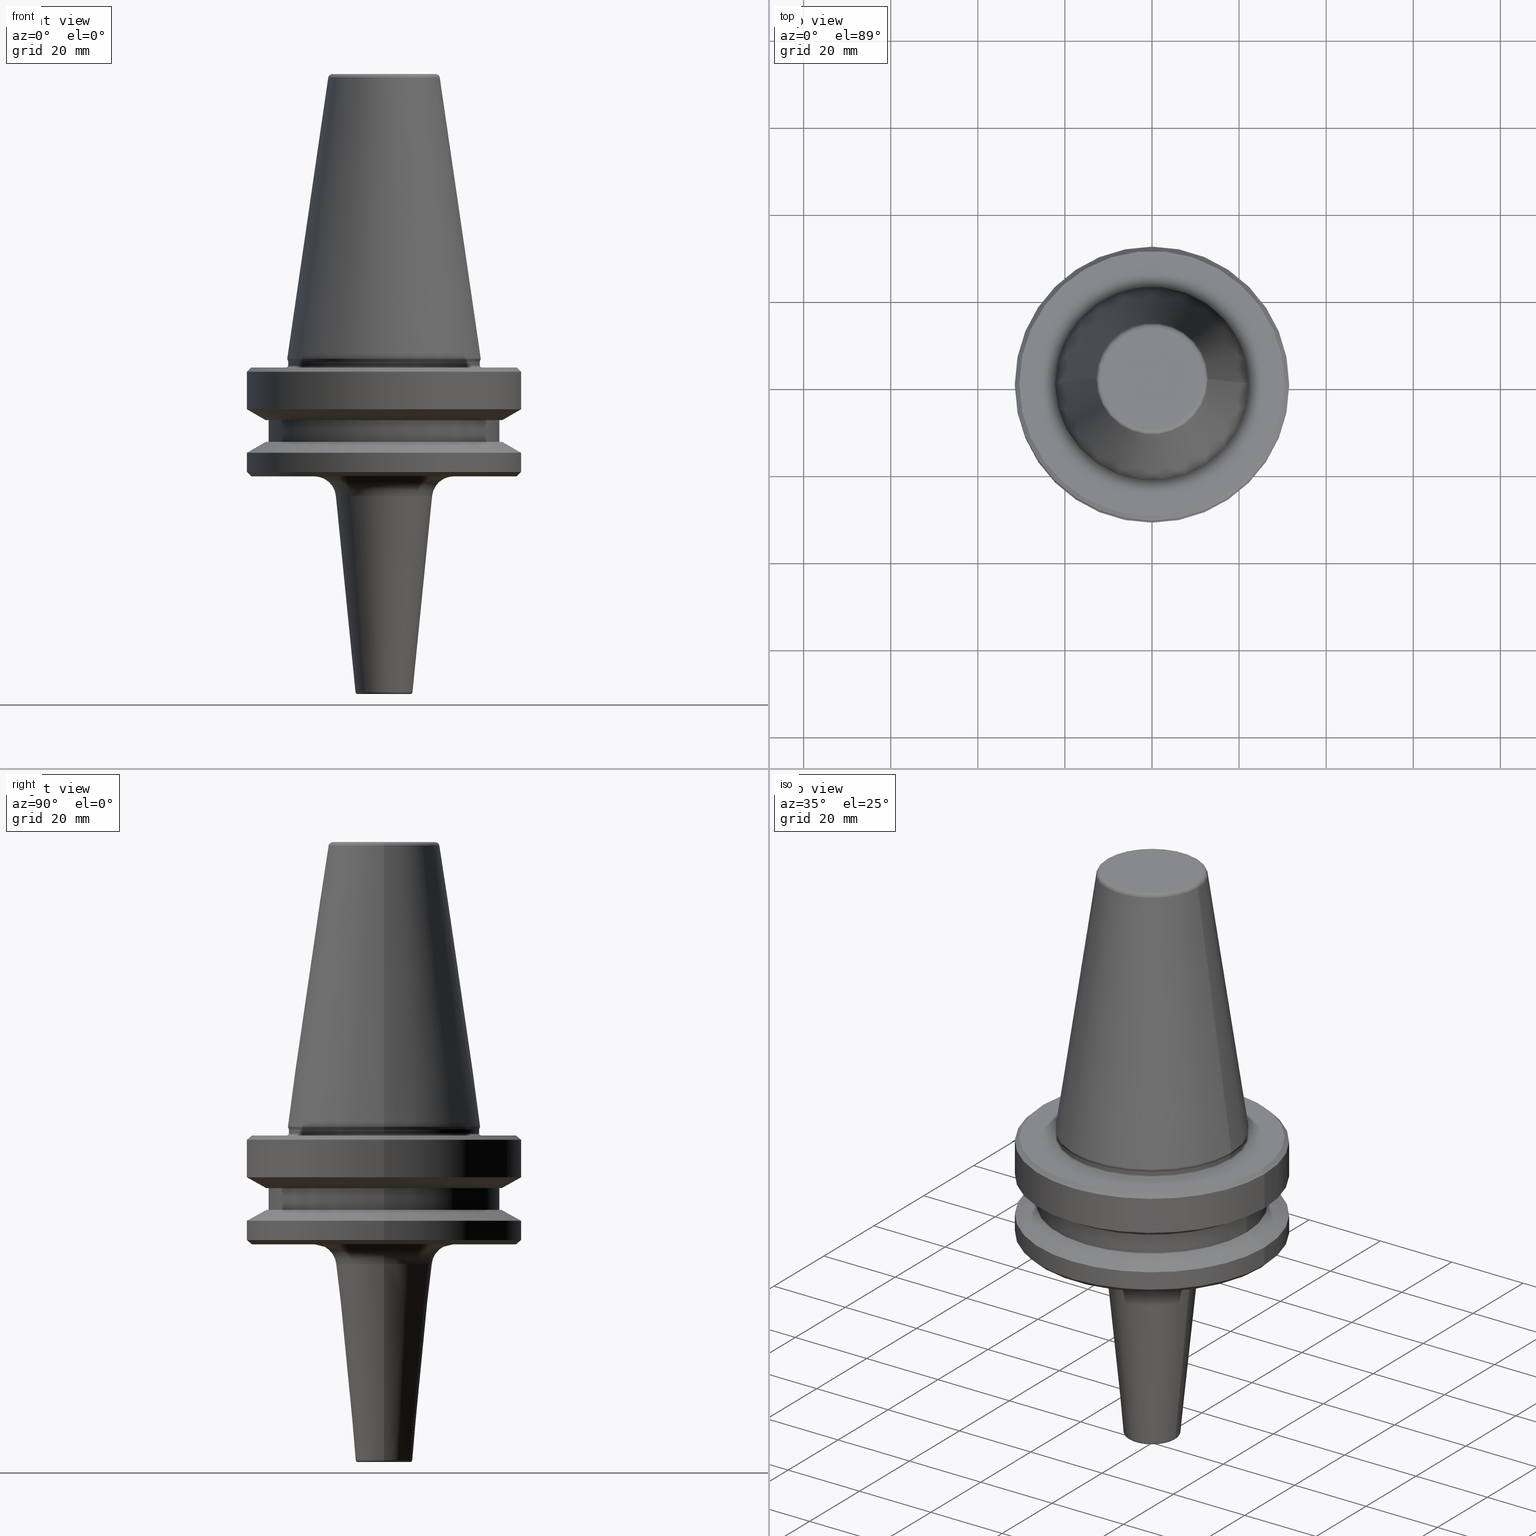
[diagram: canonical four-view strip — front | top / right | iso, engineering-drawing reading convention]
A machine part, canonical four-view strip (front | top / right | iso — engineering-drawing reading convention). The complete STEP part file that produces these views, byte-faithful:
ISO-10303-21;
HEADER;
FILE_DESCRIPTION (( 'STEP AP203' ),
    '1' );
FILE_NAME ('BT40 MCA08 050 AD+B-2.5G 25000 SL.STEP',
    '2019-05-24T09:46:21',
    ( '' ),
    ( '' ),
    'SwSTEP 2.0',
    'SolidWorks 2014',
    '' );
FILE_SCHEMA (( 'CONFIG_CONTROL_DESIGN' ));
ENDSEC;

DATA;
#1 = EDGE_LOOP ( 'NONE', ( #757, #865, #385, #295 ) ) ;
#2 = CARTESIAN_POINT ( 'NONE',  ( 0.0000000000000000000, 0.0000000000000000000, -66.90000000000040400 ) ) ;
#3 = LINE ( 'NONE', #1047, #826 ) ;
#4 = EDGE_LOOP ( 'NONE', ( #54, #964, #82, #337 ) ) ;
#5 = DIRECTION ( 'NONE',  ( -0.0000000000000000000, -0.0000000000000000000, 1.000000000000000000 ) ) ;
#6 = VERTEX_POINT ( 'NONE', #755 ) ;
#7 = EDGE_CURVE ( 'NONE', #885, #911, #184, .T. ) ;
#8 = APPROVAL_STATUS ( 'not_yet_approved' ) ;
#9 = ADVANCED_FACE ( 'NONE', ( #728 ), #165, .T. ) ;
#10 = VECTOR ( 'NONE', #667, 1000.000000000000000 ) ;
#11 = CIRCLE ( 'NONE', #268, 11.04975185951050100 ) ;
#12 = DIRECTION ( 'NONE',  ( -0.0000000000000000000, -0.0000000000000000000, 1.000000000000000000 ) ) ;
#13 = DIRECTION ( 'NONE',  ( 1.000000000000000000, 0.0000000000000000000, 0.0000000000000000000 ) ) ;
#14 = ADVANCED_FACE ( 'NONE', ( #1035 ), #743, .T. ) ;
#15 = APPROVAL_STATUS ( 'not_yet_approved' ) ;
#16 = VECTOR ( 'NONE', #575, 1000.000000000000000 ) ;
#17 = EDGE_CURVE ( 'NONE', #418, #872, #587, .T. ) ;
#18 = APPROVAL_ROLE ( '' ) ;
#19 = ORIENTED_EDGE ( 'NONE', *, *, #853, .F. ) ;
#20 = CARTESIAN_POINT ( 'NONE',  ( 6.047506218944228400, 0.0000000000000000000, -141.9000000000083900 ) ) ;
#21 = DIRECTION ( 'NONE',  ( 1.000000000000000000, 0.0000000000000000000, 0.0000000000000000000 ) ) ;
#22 = ORIENTED_EDGE ( 'NONE', *, *, #996, .T. ) ;
#23 = EDGE_CURVE ( 'NONE', #675, #949, #320, .T. ) ;
#24 = DIRECTION ( 'NONE',  ( 0.1443081888881795900, 1.767265616126607700E-017, -0.9895327920891826600 ) ) ;
#25 = VERTEX_POINT ( 'NONE', #150 ) ;
#26 = FACE_OUTER_BOUND ( 'NONE', #124, .T. ) ;
#27 = MANIFOLD_SOLID_BREP ( 'Revolve1', #926 ) ;
#28 = EDGE_LOOP ( 'NONE', ( #776, #208, #960, #601 ) ) ;
#29 = CARTESIAN_POINT ( 'NONE',  ( 22.22499999999993700, 0.0000000000000000000, -65.40000000000057400 ) ) ;
#30 = CYLINDRICAL_SURFACE ( 'NONE', #458, 22.00000000000002100 ) ;
#31 = CIRCLE ( 'NONE', #241, 31.50000000000008500 ) ;
#32 = CARTESIAN_POINT ( 'NONE',  ( 0.0000000000000000000, 0.0000000000000000000, 6.357346922996331500 ) ) ;
#33 = VECTOR ( 'NONE', #232, 1000.000000000000100 ) ;
#34 = PRODUCT_DEFINITION ( 'UNKNOWN', '', #985, #808 ) ;
#35 = EDGE_CURVE ( 'NONE', #409, #133, #974, .T. ) ;
#36 = VERTEX_POINT ( 'NONE', #105 ) ;
#37 = CARTESIAN_POINT ( 'NONE',  ( 0.0000000000000000000, 0.0000000000000000000, -97.40000000000807700 ) ) ;
#38 = CARTESIAN_POINT ( 'NONE',  ( 0.0000000000000000000, 0.0000000000000000000, -65.40000000000057400 ) ) ;
#39 = CALENDAR_DATE ( 2019, 24, 5 ) ;
#40 = CARTESIAN_POINT ( 'NONE',  ( 0.0000000000000000000, 0.0000000000000000000, -91.40000000000037500 ) ) ;
#41 = CARTESIAN_POINT ( 'NONE',  ( 0.0000000000000000000, 0.0000000000000000000, -76.99985799368391800 ) ) ;
#42 = ORIENTED_EDGE ( 'NONE', *, *, #153, .F. ) ;
#43 = DIRECTION ( 'NONE',  ( 0.0000000000000000000, 0.0000000000000000000, -1.000000000000000000 ) ) ;
#44 = VERTEX_POINT ( 'NONE', #548 ) ;
#45 = VECTOR ( 'NONE', #47, 1000.000000000000000 ) ;
#46 = VERTEX_POINT ( 'NONE', #307 ) ;
#47 = DIRECTION ( 'NONE',  ( 0.7071067811865487900, 0.0000000000000000000, 0.7071067811865463500 ) ) ;
#48 = ORIENTED_EDGE ( 'NONE', *, *, #178, .F. ) ;
#49 = CARTESIAN_POINT ( 'NONE',  ( -6.545024814048922200, 8.015343688865013700E-016, -141.9497518595188700 ) ) ;
#50 = FACE_OUTER_BOUND ( 'NONE', #443, .T. ) ;
#51 = TOROIDAL_SURFACE ( 'NONE', #317, 11.82266927716813000, 0.9999999999999696900 ) ;
#52 = CC_DESIGN_PERSON_AND_ORGANIZATION_ASSIGNMENT ( #780, #495, ( #397 ) ) ;
#53 = DIRECTION ( 'NONE',  ( 1.000000000000000000, 0.0000000000000000000, 0.0000000000000000000 ) ) ;
#54 = ORIENTED_EDGE ( 'NONE', *, *, #364, .F. ) ;
#55 = DIRECTION ( 'NONE',  ( -1.000000000000000000, 1.224646799147357600E-016, 0.0000000000000000000 ) ) ;
#56 = DIRECTION ( 'NONE',  ( 1.000000000000000000, 0.0000000000000000000, 0.0000000000000000000 ) ) ;
#57 = EDGE_CURVE ( 'NONE', #460, #550, #716, .T. ) ;
#58 = LINE ( 'NONE', #731, #16 ) ;
#59 = ADVANCED_FACE ( 'NONE', ( #944 ), #261, .T. ) ;
#60 = DIRECTION ( 'NONE',  ( 0.0000000000000000000, 0.0000000000000000000, -1.000000000000000000 ) ) ;
#61 = DIRECTION ( 'NONE',  ( 1.000000000000000000, 0.0000000000000000000, 0.0000000000000000000 ) ) ;
#62 = DIRECTION ( 'NONE',  ( -0.0000000000000000000, -0.0000000000000000000, 1.000000000000000000 ) ) ;
#63 = ADVANCED_FACE ( 'NONE', ( #534 ), #89, .T. ) ;
#64 = CIRCLE ( 'NONE', #971, 22.00000000000002100 ) ;
#65 = ORIENTED_EDGE ( 'NONE', *, *, #1028, .F. ) ;
#66 = ORIENTED_EDGE ( 'NONE', *, *, #224, .F. ) ;
#67 = PLANE ( 'NONE',  #956 ) ;
#68 = DIRECTION ( 'NONE',  ( 0.09950371902099890100, 0.0000000000000000000, 0.9950371902099890400 ) ) ;
#69 = DATE_AND_TIME ( #270, #492 ) ;
#70 = DIRECTION ( 'NONE',  ( -0.0000000000000000000, -0.0000000000000000000, 1.000000000000000000 ) ) ;
#71 = CARTESIAN_POINT ( 'NONE',  ( 0.0000000000000000000, 0.0000000000000000000, -97.40000000000807700 ) ) ;
#72 = CARTESIAN_POINT ( 'NONE',  ( 0.0000000000000000000, 0.0000000000000000000, -91.40000000000037500 ) ) ;
#73 = DIRECTION ( 'NONE',  ( 1.000000000000000000, 0.0000000000000000000, 0.0000000000000000000 ) ) ;
#74 = DIRECTION ( 'NONE',  ( -0.0000000000000000000, -0.0000000000000000000, 1.000000000000000000 ) ) ;
#75 = ORIENTED_EDGE ( 'NONE', *, *, #283, .T. ) ;
#76 = ORIENTED_EDGE ( 'NONE', *, *, #598, .F. ) ;
#77 = DIRECTION ( 'NONE',  ( -0.0000000000000000000, -0.0000000000000000000, 1.000000000000000000 ) ) ;
#78 = TOROIDAL_SURFACE ( 'NONE', #388, 6.047506218944228400, 0.4999999999996975200 ) ;
#79 = ORIENTED_EDGE ( 'NONE', *, *, #402, .T. ) ;
#80 = EDGE_CURVE ( 'NONE', #554, #556, #485, .T. ) ;
#81 = CARTESIAN_POINT ( 'NONE',  ( 0.0000000000000000000, 0.0000000000000000000, -141.9497518595188700 ) ) ;
#82 = ORIENTED_EDGE ( 'NONE', *, *, #80, .T. ) ;
#83 = DIRECTION ( 'NONE',  ( -0.0000000000000000000, -0.0000000000000000000, 1.000000000000000000 ) ) ;
#84 = FACE_OUTER_BOUND ( 'NONE', #4, .T. ) ;
#85 = CIRCLE ( 'NONE', #600, 0.4000000000001536800 ) ;
#86 = ORIENTED_EDGE ( 'NONE', *, *, #407, .F. ) ;
#87 = DIRECTION ( 'NONE',  ( -0.0000000000000000000, -0.0000000000000000000, 1.000000000000000000 ) ) ;
#88 = EDGE_CURVE ( 'NONE', #815, #567, #690, .T. ) ;
#89 = CYLINDRICAL_SURFACE ( 'NONE', #651, 31.50000000000008500 ) ;
#90 =( LENGTH_UNIT ( ) NAMED_UNIT ( * ) SI_UNIT ( .MILLI., .METRE. ) );
#91 = CARTESIAN_POINT ( 'NONE',  ( 12.81220206925736900, 2.145409868259749100E-015, -0.8556918111122247000 ) ) ;
#92 = FACE_OUTER_BOUND ( 'NONE', #684, .T. ) ;
#93 = PERSON_AND_ORGANIZATION_ROLE ( 'creator' ) ;
#94 = VERTEX_POINT ( 'NONE', #929 ) ;
#95 = ORIENTED_EDGE ( 'NONE', *, *, #191, .T. ) ;
#96 = CARTESIAN_POINT ( 'NONE',  ( 0.0000000000000000000, 0.0000000000000000000, -92.40000000000803500 ) ) ;
#97 = PERSON_AND_ORGANIZATION ( #555, #351 ) ;
#98 = EDGE_CURVE ( 'NONE', #311, #558, #913, .T. ) ;
#99 = DIRECTION ( 'NONE',  ( 1.000000000000000000, 0.0000000000000000000, 0.0000000000000000000 ) ) ;
#100 = ADVANCED_FACE ( 'NONE', ( #666 ), #427, .T. ) ;
#101 = EDGE_CURVE ( 'NONE', #554, #222, #647, .T. ) ;
#102 = TOROIDAL_SURFACE ( 'NONE', #921, 11.82266927716813000, 0.9999999999999696900 ) ;
#103 = EDGE_LOOP ( 'NONE', ( #585, #152, #531, #338 ) ) ;
#104 = VERTEX_POINT ( 'NONE', #156 ) ;
#105 = CARTESIAN_POINT ( 'NONE',  ( 26.50000000000019200, 0.0000000000000000000, -79.50000000000012800 ) ) ;
#106 = ORIENTED_EDGE ( 'NONE', *, *, #196, .F. ) ;
#107 = CIRCLE ( 'NONE', #916, 11.82266927716813000 ) ;
#108 = CIRCLE ( 'NONE', #739, 27.16962701892256100 ) ;
#109 = CARTESIAN_POINT ( 'NONE',  ( 12.81220206925736900, 1.569042225414513200E-015, -0.8556918111122247000 ) ) ;
#110 = ORIENTED_EDGE ( 'NONE', *, *, #269, .T. ) ;
#111 = VECTOR ( 'NONE', #273, 1000.000000000000000 ) ;
#112 = AXIS2_PLACEMENT_3D ( 'NONE', #192, #436, #1026 ) ;
#113 = EDGE_CURVE ( 'NONE', #540, #94, #452, .T. ) ;
#114 = CIRCLE ( 'NONE', #1012, 0.4999999999999449300 ) ;
#115 = EDGE_LOOP ( 'NONE', ( #372, #799 ) ) ;
#116 = DIRECTION ( 'NONE',  ( 1.000000000000000000, 0.0000000000000000000, 0.0000000000000000000 ) ) ;
#117 = ORIENTED_EDGE ( 'NONE', *, *, #330, .T. ) ;
#118 = DIRECTION ( 'NONE',  ( 1.000000000000000000, 0.0000000000000000000, 0.0000000000000000000 ) ) ;
#119 = LOCAL_TIME ( 15, 16, 21.00000000000000000, #328 ) ;
#120 = AXIS2_PLACEMENT_3D ( 'NONE', #953, #122, #994 ) ;
#121 = EDGE_CURVE ( 'NONE', #36, #550, #859, .T. ) ;
#122 = DIRECTION ( 'NONE',  ( 0.0000000000000000000, -1.000000000000000000, 0.0000000000000000000 ) ) ;
#123 = ORIENTED_EDGE ( 'NONE', *, *, #579, .F. ) ;
#124 = EDGE_LOOP ( 'NONE', ( #297, #965, #724, #738 ) ) ;
#125 = APPLICATION_CONTEXT ( 'configuration controlled 3d designs of mechanical parts and assemblies' ) ;
#126 = DIRECTION ( 'NONE',  ( -0.0000000000000000000, -0.0000000000000000000, 1.000000000000000000 ) ) ;
#127 = ORIENTED_EDGE ( 'NONE', *, *, #101, .T. ) ;
#128 = EDGE_CURVE ( 'NONE', #172, #789, #58, .T. ) ;
#129 = CIRCLE ( 'NONE', #365, 11.04975185951050100 ) ;
#130 = ORIENTED_EDGE ( 'NONE', *, *, #673, .T. ) ;
#131 = CARTESIAN_POINT ( 'NONE',  ( 0.0000000000000000000, 0.0000000000000000000, -67.40000000000034700 ) ) ;
#132 = DIRECTION ( 'NONE',  ( -0.0000000000000000000, -0.0000000000000000000, 1.000000000000000000 ) ) ;
#133 = VERTEX_POINT ( 'NONE', #466 ) ;
#134 = DIRECTION ( 'NONE',  ( 1.000000000000000000, 0.0000000000000000000, 0.0000000000000000000 ) ) ;
#135 = AXIS2_PLACEMENT_3D ( 'NONE', #749, #304, #535 ) ;
#136 = EDGE_CURVE ( 'NONE', #264, #311, #235, .T. ) ;
#137 = ORIENTED_EDGE ( 'NONE', *, *, #364, .T. ) ;
#138 = CARTESIAN_POINT ( 'NONE',  ( 0.0000000000000000000, 0.0000000000000000000, -142.4000000000080800 ) ) ;
#139 = DIRECTION ( 'NONE',  ( -0.0000000000000000000, -0.0000000000000000000, 1.000000000000000000 ) ) ;
#140 = VECTOR ( 'NONE', #922, 1000.000000000000000 ) ;
#141 = ORIENTED_EDGE ( 'NONE', *, *, #412, .T. ) ;
#142 = AXIS2_PLACEMENT_3D ( 'NONE', #421, #210, #461 ) ;
#143 = EDGE_LOOP ( 'NONE', ( #967, #151, #766, #176 ) ) ;
#144 = CALENDAR_DATE ( 2019, 24, 5 ) ;
#145 = FACE_OUTER_BOUND ( 'NONE', #197, .T. ) ;
#146 = DIRECTION ( 'NONE',  ( 1.000000000000000000, 0.0000000000000000000, 0.0000000000000000000 ) ) ;
#147 = CARTESIAN_POINT ( 'NONE',  ( -26.50000000000019200, 3.245314017740509400E-015, 6.357346922996331500 ) ) ;
#148 = DIRECTION ( 'NONE',  ( 1.000000000000000000, 0.0000000000000000000, 0.0000000000000000000 ) ) ;
#149 = EDGE_CURVE ( 'NONE', #638, #478, #832, .T. ) ;
#150 = CARTESIAN_POINT ( 'NONE',  ( 16.02493781056045200, 0.0000000000000000000, -92.40000000000809200 ) ) ;
#151 = ORIENTED_EDGE ( 'NONE', *, *, #173, .T. ) ;
#152 = ORIENTED_EDGE ( 'NONE', *, *, #564, .T. ) ;
#153 = EDGE_CURVE ( 'NONE', #990, #25, #623, .T. ) ;
#154 = DIRECTION ( 'NONE',  ( 0.0000000000000000000, 0.0000000000000000000, 1.000000000000000000 ) ) ;
#155 = CIRCLE ( 'NONE', #828, 31.50000000000008500 ) ;
#156 = CARTESIAN_POINT ( 'NONE',  ( -12.81220206925736900, 0.0000000000000000000, -0.8556918111122247000 ) ) ;
#157 = AXIS2_PLACEMENT_3D ( 'NONE', #370, #705, #454 ) ;
#158 = AXIS2_PLACEMENT_3D ( 'NONE', #72, #389, #116 ) ;
#159 = CARTESIAN_POINT ( 'NONE',  ( -27.16962701892256100, 0.0000000000000000000, -84.50000000000068200 ) ) ;
#160 = DIRECTION ( 'NONE',  ( 1.000000000000000000, 0.0000000000000000000, 0.0000000000000000000 ) ) ;
#161 = CARTESIAN_POINT ( 'NONE',  ( -22.00000000000002100, 2.724839128102860200E-015, -66.90000000000040400 ) ) ;
#162 = FACE_OUTER_BOUND ( 'NONE', #778, .T. ) ;
#163 = ORIENTED_EDGE ( 'NONE', *, *, #23, .F. ) ;
#164 = EDGE_LOOP ( 'NONE', ( #205, #827 ) ) ;
#165 = CYLINDRICAL_SURFACE ( 'NONE', #969, 31.50000000000008500 ) ;
#166 = EDGE_CURVE ( 'NONE', #418, #396, #405, .T. ) ;
#167 = CARTESIAN_POINT ( 'NONE',  ( 22.00000000000002100, 0.0000000000000000000, -66.90000000000040400 ) ) ;
#168 = DATE_AND_TIME ( #376, #589 ) ;
#169 = CIRCLE ( 'NONE', #289, 31.50000000000008500 ) ;
#170 = APPLICATION_PROTOCOL_DEFINITION ( 'international standard', 'config_control_design', 1994, #490 ) ;
#171 = DIRECTION ( 'NONE',  ( -0.0000000000000000000, -0.0000000000000000000, 1.000000000000000000 ) ) ;
#172 = VERTEX_POINT ( 'NONE', #159 ) ;
#173 = EDGE_CURVE ( 'NONE', #911, #935, #811, .T. ) ;
#174 = CONICAL_SURFACE ( 'NONE', #962, 12.81220206925736900, 0.1448138077623198300 ) ;
#175 = APPLICATION_PROTOCOL_DEFINITION ( 'international standard', 'config_control_design', 1994, #125 ) ;
#176 = ORIENTED_EDGE ( 'NONE', *, *, #864, .F. ) ;
#177 = FACE_OUTER_BOUND ( 'NONE', #143, .T. ) ;
#178 = EDGE_CURVE ( 'NONE', #44, #815, #1045, .T. ) ;
#179 = DIRECTION ( 'NONE',  ( 1.000000000000000000, 0.0000000000000000000, 0.0000000000000000000 ) ) ;
#180 = DIRECTION ( 'NONE',  ( 1.000000000000000000, 0.0000000000000000000, 0.0000000000000000000 ) ) ;
#181 = CIRCLE ( 'NONE', #157, 22.00000000000002100 ) ;
#182 = ORIENTED_EDGE ( 'NONE', *, *, #797, .T. ) ;
#183 =( NAMED_UNIT ( * ) PLANE_ANGLE_UNIT ( ) SI_UNIT ( $, .RADIAN. ) );
#184 = CIRCLE ( 'NONE', #988, 30.49999999999241900 ) ;
#185 = DIRECTION ( 'NONE',  ( -0.0000000000000000000, -0.0000000000000000000, 1.000000000000000000 ) ) ;
#186 = EDGE_CURVE ( 'NONE', #46, #44, #213, .T. ) ;
#187 = CIRCLE ( 'NONE', #120, 4.999999999999990200 ) ;
#188 = AXIS2_PLACEMENT_3D ( 'NONE', #940, #958, #267 ) ;
#189 = ORIENTED_EDGE ( 'NONE', *, *, #233, .T. ) ;
#190 = CIRCLE ( 'NONE', #744, 6.545024814048922200 ) ;
#191 = EDGE_CURVE ( 'NONE', #540, #815, #190, .T. ) ;
#192 = CARTESIAN_POINT ( 'NONE',  ( 0.0000000000000000000, 0.0000000000000000000, -79.50000000000012800 ) ) ;
#193 = ORIENTED_EDGE ( 'NONE', *, *, #128, .F. ) ;
#194 = CARTESIAN_POINT ( 'NONE',  ( 30.49999999999997200, 3.796405077356798300E-015, -67.40000000000034700 ) ) ;
#195 = CARTESIAN_POINT ( 'NONE',  ( 0.0000000000000000000, 0.0000000000000000000, -65.40000000000057400 ) ) ;
#196 = EDGE_CURVE ( 'NONE', #935, #789, #380, .T. ) ;
#197 = EDGE_LOOP ( 'NONE', ( #903, #252, #130, #265 ) ) ;
#198 = CARTESIAN_POINT ( 'NONE',  ( 0.0000000000000000000, 0.0000000000000000000, -92.40000000000809200 ) ) ;
#199 = CARTESIAN_POINT ( 'NONE',  ( 0.0000000000000000000, 0.0000000000000000000, -91.40000000000037500 ) ) ;
#200 = AXIS2_PLACEMENT_3D ( 'NONE', #669, #298, #863 ) ;
#201 = DIRECTION ( 'NONE',  ( -1.000000000000000000, 0.0000000000000000000, 0.0000000000000000000 ) ) ;
#202 = ORIENTED_EDGE ( 'NONE', *, *, #631, .F. ) ;
#203 = AXIS2_PLACEMENT_3D ( 'NONE', #591, #1011, #946 ) ;
#204 = CONICAL_SURFACE ( 'NONE', #250, 31.50000000000008500, 1.047197551196587000 ) ;
#205 = ORIENTED_EDGE ( 'NONE', *, *, #7, .F. ) ;
#206 = ADVANCED_FACE ( 'NONE', ( #803 ), #1015, .F. ) ;
#207 = DIRECTION ( 'NONE',  ( 1.000000000000000000, 0.0000000000000000000, 0.0000000000000000000 ) ) ;
#208 = ORIENTED_EDGE ( 'NONE', *, *, #583, .F. ) ;
#209 = LINE ( 'NONE', #441, #830 ) ;
#210 = DIRECTION ( 'NONE',  ( -0.0000000000000000000, -0.0000000000000000000, 1.000000000000000000 ) ) ;
#211 = EDGE_CURVE ( 'NONE', #172, #527, #108, .T. ) ;
#212 = DIRECTION ( 'NONE',  ( -1.000000000000000000, 0.0000000000000000000, 0.0000000000000000000 ) ) ;
#213 = CIRCLE ( 'NONE', #751, 6.047506218944228400 ) ;
#214 = CARTESIAN_POINT ( 'NONE',  ( 0.0000000000000000000, 0.0000000000000000000, -79.50000000000012800 ) ) ;
#215 = CARTESIAN_POINT ( 'NONE',  ( 0.0000000000000000000, 0.0000000000000000000, -91.40000000000037500 ) ) ;
#216 = EDGE_CURVE ( 'NONE', #349, #556, #711, .T. ) ;
#217 = CARTESIAN_POINT ( 'NONE',  ( 22.00000000000002100, 0.0000000000000000000, -66.08871321165987900 ) ) ;
#218 = AXIS2_PLACEMENT_3D ( 'NONE', #360, #1054, #272 ) ;
#219 = DIRECTION ( 'NONE',  ( -0.8660254037844383700, 1.060575238724906500E-016, 0.5000000000000003300 ) ) ;
#220 = EDGE_LOOP ( 'NONE', ( #66, #538, #1014, #239 ) ) ;
#221 = CARTESIAN_POINT ( 'NONE',  ( 11.82266927716813000, 0.0000000000000000000, -4.440892098500626200E-013 ) ) ;
#222 = VERTEX_POINT ( 'NONE', #161 ) ;
#223 = AXIS2_PLACEMENT_3D ( 'NONE', #930, #541, #118 ) ;
#224 = EDGE_CURVE ( 'NONE', #222, #478, #316, .T. ) ;
#225 = ORIENTED_EDGE ( 'NONE', *, *, #178, .T. ) ;
#226 = DIRECTION ( 'NONE',  ( -0.0000000000000000000, -0.0000000000000000000, 1.000000000000000000 ) ) ;
#227 = FACE_OUTER_BOUND ( 'NONE', #1, .T. ) ;
#228 = CARTESIAN_POINT ( 'NONE',  ( -31.50000000000008500, 3.857637417314172900E-015, -91.40000000000037500 ) ) ;
#229 = EDGE_LOOP ( 'NONE', ( #678, #632, #79, #326 ) ) ;
#230 = VECTOR ( 'NONE', #24, 1000.000000000000000 ) ;
#231 = CIRCLE ( 'NONE', #188, 30.49999999999241900 ) ;
#232 = DIRECTION ( 'NONE',  ( -0.09950371902099890100, 1.218569110023239200E-017, 0.9950371902099890400 ) ) ;
#233 = EDGE_CURVE ( 'NONE', #478, #638, #505, .T. ) ;
#234 = CARTESIAN_POINT ( 'NONE',  ( 31.50000000000008500, 0.0000000000000000000, -76.99985799368391800 ) ) ;
#235 = CIRCLE ( 'NONE', #451, 0.9999999999999696900 ) ;
#236 = CARTESIAN_POINT ( 'NONE',  ( 0.0000000000000000000, 0.0000000000000000000, -65.95190515433003500 ) ) ;
#237 = AXIS2_PLACEMENT_3D ( 'NONE', #248, #340, #309 ) ;
#238 = FACE_OUTER_BOUND ( 'NONE', #1044, .T. ) ;
#239 = ORIENTED_EDGE ( 'NONE', *, *, #149, .T. ) ;
#240 = ORIENTED_EDGE ( 'NONE', *, *, #883, .F. ) ;
#241 = AXIS2_PLACEMENT_3D ( 'NONE', #699, #62, #543 ) ;
#242 = PERSON_AND_ORGANIZATION_ROLE ( 'creator' ) ;
#243 = DIRECTION ( 'NONE',  ( -0.0000000000000000000, -0.0000000000000000000, 1.000000000000000000 ) ) ;
#244 = LOCAL_TIME ( 15, 16, 21.00000000000000000, #463 ) ;
#245 = EDGE_CURVE ( 'NONE', #527, #698, #285, .T. ) ;
#246 = DIRECTION ( 'NONE',  ( 0.0000000000000000000, 0.0000000000000000000, -1.000000000000000000 ) ) ;
#247 = EDGE_LOOP ( 'NONE', ( #655, #992 ) ) ;
#248 = CARTESIAN_POINT ( 'NONE',  ( 0.0000000000000000000, 0.0000000000000000000, 6.357346922996331500 ) ) ;
#249 = FACE_BOUND ( 'NONE', #720, .T. ) ;
#250 = AXIS2_PLACEMENT_3D ( 'NONE', #878, #945, #793 ) ;
#251 = EDGE_LOOP ( 'NONE', ( #680, #347 ) ) ;
#252 = ORIENTED_EDGE ( 'NONE', *, *, #348, .F. ) ;
#253 = DIRECTION ( 'NONE',  ( -1.000000000000000000, 0.0000000000000000000, -0.0000000000000000000 ) ) ;
#254 = VECTOR ( 'NONE', #467, 1000.000000000000100 ) ;
#255 = CIRCLE ( 'NONE', #442, 27.16962701892256100 ) ;
#256 = DIRECTION ( 'NONE',  ( -0.0000000000000000000, -0.0000000000000000000, 1.000000000000000000 ) ) ;
#257 = ORIENTED_EDGE ( 'NONE', *, *, #407, .T. ) ;
#258 = CARTESIAN_POINT ( 'NONE',  ( 0.0000000000000000000, 0.0000000000000000000, -66.90000000000040400 ) ) ;
#259 = APPROVAL ( #15, 'UNSPECIFIED' ) ;
#260 = DIRECTION ( 'NONE',  ( -0.0000000000000000000, -0.0000000000000000000, 1.000000000000000000 ) ) ;
#261 = CONICAL_SURFACE ( 'NONE', #927, 22.22499999999993700, 0.3490658503994643600 ) ;
#262 = DIRECTION ( 'NONE',  ( 0.0000000000000000000, 0.0000000000000000000, -1.000000000000000000 ) ) ;
#263 = FACE_OUTER_BOUND ( 'NONE', #512, .T. ) ;
#264 = VERTEX_POINT ( 'NONE', #91 ) ;
#265 = ORIENTED_EDGE ( 'NONE', *, *, #306, .T. ) ;
#266 = CARTESIAN_POINT ( 'NONE',  ( 0.0000000000000000000, 0.0000000000000000000, -66.08871321165987900 ) ) ;
#267 = DIRECTION ( 'NONE',  ( 1.000000000000000000, 0.0000000000000000000, 0.0000000000000000000 ) ) ;
#268 = AXIS2_PLACEMENT_3D ( 'NONE', #449, #1040, #842 ) ;
#269 = EDGE_CURVE ( 'NONE', #675, #473, #85, .T. ) ;
#270 = CALENDAR_DATE ( 2019, 24, 5 ) ;
#271 = DIRECTION ( 'NONE',  ( 1.000000000000000000, 0.0000000000000000000, 0.0000000000000000000 ) ) ;
#272 = DIRECTION ( 'NONE',  ( -1.000000000000000000, 1.224646799147353500E-016, 0.0000000000000000000 ) ) ;
#273 = DIRECTION ( 'NONE',  ( -0.3420201433262311000, 4.188538737683878900E-017, 0.9396926207857037000 ) ) ;
#274 = EDGE_CURVE ( 'NONE', #671, #6, #939, .T. ) ;
#275 = ORIENTED_EDGE ( 'NONE', *, *, #306, .F. ) ;
#276 = DIRECTION ( 'NONE',  ( -0.0000000000000000000, -0.0000000000000000000, 1.000000000000000000 ) ) ;
#277 = DIRECTION ( 'NONE',  ( -0.0000000000000000000, -0.0000000000000000000, 1.000000000000000000 ) ) ;
#278 = VECTOR ( 'NONE', #915, 1000.000000000000000 ) ;
#279 = ORIENTED_EDGE ( 'NONE', *, *, #35, .T. ) ;
#280 = DIRECTION ( 'NONE',  ( -0.0000000000000000000, -0.0000000000000000000, 1.000000000000000000 ) ) ;
#281 = ORIENTED_EDGE ( 'NONE', *, *, #113, .T. ) ;
#282 = DIRECTION ( 'NONE',  ( 1.000000000000000000, 0.0000000000000000000, 0.0000000000000000000 ) ) ;
#283 = EDGE_CURVE ( 'NONE', #675, #349, #686, .T. ) ;
#284 = CONICAL_SURFACE ( 'NONE', #838, 12.81220206925736900, 0.1448138077623198300 ) ;
#285 = LINE ( 'NONE', #329, #910 ) ;
#286 = ORIENTED_EDGE ( 'NONE', *, *, #80, .F. ) ;
#287 = ADVANCED_FACE ( 'NONE', ( #480 ), #51, .T. ) ;
#288 = VECTOR ( 'NONE', #276, 1000.000000000000000 ) ;
#289 = AXIS2_PLACEMENT_3D ( 'NONE', #41, #132, #618 ) ;
#290 = CARTESIAN_POINT ( 'NONE',  ( 11.04975185951050100, 0.0000000000000000000, -96.90248140490307100 ) ) ;
#291 = CARTESIAN_POINT ( 'NONE',  ( -11.82266927716813000, 1.508450817090336800E-015, -4.440892098500626200E-013 ) ) ;
#292 = ADVANCED_FACE ( 'NONE', ( #447 ), #642, .T. ) ;
#293 = CIRCLE ( 'NONE', #782, 31.50000000000008500 ) ;
#294 = ORIENTED_EDGE ( 'NONE', *, *, #136, .T. ) ;
#295 = ORIENTED_EDGE ( 'NONE', *, *, #1013, .F. ) ;
#296 = CARTESIAN_POINT ( 'NONE',  ( 0.0000000000000000000, 0.0000000000000000000, -4.440892098500626200E-013 ) ) ;
#297 = ORIENTED_EDGE ( 'NONE', *, *, #166, .T. ) ;
#298 = DIRECTION ( 'NONE',  ( -0.0000000000000000000, -0.0000000000000000000, 1.000000000000000000 ) ) ;
#299 = ADVANCED_BREP_SHAPE_REPRESENTATION ( 'BT40 MCA08 050 AD+B-2.5G 25000 SL', ( #27, #411 ), #536 ) ;
#300 = CARTESIAN_POINT ( 'NONE',  ( 22.00000000000002100, 0.0000000000000000000, 6.357346922996331500 ) ) ;
#301 = PERSON_AND_ORGANIZATION ( #555, #351 ) ;
#302 = CARTESIAN_POINT ( 'NONE',  ( -22.22499999999993700, 2.721777511104985000E-015, -65.40000000000057400 ) ) ;
#303 = DIRECTION ( 'NONE',  ( -0.0000000000000000000, -0.0000000000000000000, 1.000000000000000000 ) ) ;
#304 = DIRECTION ( 'NONE',  ( -0.0000000000000000000, -0.0000000000000000000, 1.000000000000000000 ) ) ;
#305 = AXIS2_PLACEMENT_3D ( 'NONE', #81, #226, #561 ) ;
#306 = EDGE_CURVE ( 'NONE', #578, #872, #31, .T. ) ;
#307 = CARTESIAN_POINT ( 'NONE',  ( -6.047506218944228400, 7.710701411359388000E-016, -142.4000000000080800 ) ) ;
#308 = DIRECTION ( 'NONE',  ( -1.000000000000000000, 0.0000000000000000000, -0.0000000000000000000 ) ) ;
#309 = DIRECTION ( 'NONE',  ( 1.000000000000000000, 0.0000000000000000000, 0.0000000000000000000 ) ) ;
#310 = TOROIDAL_SURFACE ( 'NONE', #648, 16.02493781056045200, 4.999999999999997300 ) ;
#311 = VERTEX_POINT ( 'NONE', #221 ) ;
#312 = ORIENTED_EDGE ( 'NONE', *, *, #274, .T. ) ;
#313 = CARTESIAN_POINT ( 'NONE',  ( 0.0000000000000000000, 0.0000000000000000000, -67.40000000000034700 ) ) ;
#314 = EDGE_LOOP ( 'NONE', ( #106, #445, #973, #898 ) ) ;
#315 = FACE_OUTER_BOUND ( 'NONE', #229, .T. ) ;
#316 = CIRCLE ( 'NONE', #703, 0.4999999999999449300 ) ;
#317 = AXIS2_PLACEMENT_3D ( 'NONE', #570, #83, #760 ) ;
#318 = ORIENTED_EDGE ( 'NONE', *, *, #790, .F. ) ;
#319 = DIRECTION ( 'NONE',  ( 1.000000000000000000, 0.0000000000000000000, 0.0000000000000000000 ) ) ;
#320 = LINE ( 'NONE', #745, #111 ) ;
#321 = CARTESIAN_POINT ( 'NONE',  ( -22.40000000000019800, 2.743208830090095500E-015, -66.08871321165987900 ) ) ;
#322 = AXIS2_PLACEMENT_3D ( 'NONE', #906, #139, #61 ) ;
#323 = TOROIDAL_SURFACE ( 'NONE', #801, 22.40000000000019800, 0.4000000000001546800 ) ;
#324 = EDGE_CURVE ( 'NONE', #46, #540, #856, .T. ) ;
#325 = DATE_TIME_ROLE ( 'creation_date' ) ;
#326 = ORIENTED_EDGE ( 'NONE', *, *, #1033, .F. ) ;
#327 = ORIENTED_EDGE ( 'NONE', *, *, #121, .F. ) ;
#328 = COORDINATED_UNIVERSAL_TIME_OFFSET ( 5, 30, .AHEAD. ) ;
#329 = CARTESIAN_POINT ( 'NONE',  ( 31.50000000000008500, 3.857637417314172900E-015, -87.00014200631733300 ) ) ;
#330 = EDGE_CURVE ( 'NONE', #911, #885, #231, .T. ) ;
#331 = ORIENTED_EDGE ( 'NONE', *, *, #523, .T. ) ;
#332 = EDGE_LOOP ( 'NONE', ( #851, #95, #477, #610 ) ) ;
#333 = DIRECTION ( 'NONE',  ( 1.000000000000000000, 0.0000000000000000000, 0.0000000000000000000 ) ) ;
#334 = ORIENTED_EDGE ( 'NONE', *, *, #870, .T. ) ;
#335 = CONICAL_SURFACE ( 'NONE', #821, 31.50000000000008500, 0.7853981633974500600 ) ;
#336 = AXIS2_PLACEMENT_3D ( 'NONE', #733, #627, #932 ) ;
#337 = ORIENTED_EDGE ( 'NONE', *, *, #870, .F. ) ;
#338 = ORIENTED_EDGE ( 'NONE', *, *, #1048, .F. ) ;
#339 = DIRECTION ( 'NONE',  ( -0.0000000000000000000, -0.0000000000000000000, 1.000000000000000000 ) ) ;
#340 = DIRECTION ( 'NONE',  ( -0.0000000000000000000, -0.0000000000000000000, 1.000000000000000000 ) ) ;
#341 = CARTESIAN_POINT ( 'NONE',  ( 0.0000000000000000000, 0.0000000000000000000, -67.40000000000034700 ) ) ;
#342 = AXIS2_PLACEMENT_3D ( 'NONE', #38, #70, #517 ) ;
#343 = EDGE_CURVE ( 'NONE', #935, #942, #882, .T. ) ;
#344 = AXIS2_PLACEMENT_3D ( 'NONE', #214, #260, #180 ) ;
#345 = CARTESIAN_POINT ( 'NONE',  ( 0.0000000000000000000, 0.0000000000000000000, -1.000000000000334000 ) ) ;
#346 = FACE_OUTER_BOUND ( 'NONE', #468, .T. ) ;
#347 = ORIENTED_EDGE ( 'NONE', *, *, #186, .F. ) ;
#348 = EDGE_CURVE ( 'NONE', #6, #671, #664, .T. ) ;
#349 = VERTEX_POINT ( 'NONE', #742 ) ;
#350 = LOCAL_TIME ( 15, 16, 21.00000000000000000, #572 ) ;
#351 = ORGANIZATION ( 'UNSPECIFIED', 'UNSPECIFIED', '' ) ;
#352 = FACE_OUTER_BOUND ( 'NONE', #220, .T. ) ;
#353 = CARTESIAN_POINT ( 'NONE',  ( -31.50000000000008500, 3.857637417314172900E-015, -68.40000000000046000 ) ) ;
#354 = PRODUCT_RELATED_PRODUCT_CATEGORY ( 'detail', '', ( #397 ) ) ;
#355 = ORIENTED_EDGE ( 'NONE', *, *, #1033, .T. ) ;
#356 = AXIS2_PLACEMENT_3D ( 'NONE', #694, #795, #532 ) ;
#357 = EDGE_CURVE ( 'NONE', #527, #172, #255, .T. ) ;
#358 = CARTESIAN_POINT ( 'NONE',  ( 0.0000000000000000000, 0.0000000000000000000, -96.90248140490307100 ) ) ;
#359 = DIRECTION ( 'NONE',  ( 0.0000000000000000000, 0.0000000000000000000, -1.000000000000000000 ) ) ;
#360 = CARTESIAN_POINT ( 'NONE',  ( -16.02493781056045200, 1.962488879623824800E-015, -97.40000000000807700 ) ) ;
#361 = ORIENTED_EDGE ( 'NONE', *, *, #88, .F. ) ;
#362 = FACE_BOUND ( 'NONE', #991, .T. ) ;
#363 = CARTESIAN_POINT ( 'NONE',  ( 22.49999999999996400, 0.0000000000000000000, -67.40000000000034700 ) ) ;
#364 = EDGE_CURVE ( 'NONE', #222, #473, #209, .T. ) ;
#365 = AXIS2_PLACEMENT_3D ( 'NONE', #358, #835, #271 ) ;
#366 = DIRECTION ( 'NONE',  ( 0.0000000000000000000, 0.0000000000000000000, -1.000000000000000000 ) ) ;
#367 = DIRECTION ( 'NONE',  ( 1.000000000000000000, 0.0000000000000000000, 0.0000000000000000000 ) ) ;
#368 = DIRECTION ( 'NONE',  ( -0.0000000000000000000, -0.0000000000000000000, 1.000000000000000000 ) ) ;
#369 = DIRECTION ( 'NONE',  ( 1.000000000000000000, 0.0000000000000000000, 0.0000000000000000000 ) ) ;
#370 = CARTESIAN_POINT ( 'NONE',  ( 0.0000000000000000000, 0.0000000000000000000, -66.90000000000040400 ) ) ;
#371 = CONICAL_SURFACE ( 'NONE', #223, 11.04975185951050100, 0.09966865249116202400 ) ;
#372 = ORIENTED_EDGE ( 'NONE', *, *, #211, .T. ) ;
#373 = ORIENTED_EDGE ( 'NONE', *, *, #679, .F. ) ;
#374 = VECTOR ( 'NONE', #676, 1000.000000000000000 ) ;
#375 = DIRECTION ( 'NONE',  ( -1.000000000000000000, 0.0000000000000000000, -0.0000000000000000000 ) ) ;
#376 = CALENDAR_DATE ( 2019, 24, 5 ) ;
#377 = CIRCLE ( 'NONE', #305, 6.545024814048922200 ) ;
#378 = DIRECTION ( 'NONE',  ( 1.000000000000000000, 0.0000000000000000000, 0.0000000000000000000 ) ) ;
#379 = ORIENTED_EDGE ( 'NONE', *, *, #224, .T. ) ;
#380 = LINE ( 'NONE', #593, #787 ) ;
#381 = CARTESIAN_POINT ( 'NONE',  ( 0.0000000000000000000, 0.0000000000000000000, -0.8556918111122247000 ) ) ;
#382 = AXIS2_PLACEMENT_3D ( 'NONE', #236, #718, #13 ) ;
#383 = CARTESIAN_POINT ( 'NONE',  ( 26.50000000000019200, 0.0000000000000000000, -84.50000000000068200 ) ) ;
#384 = ORIENTED_EDGE ( 'NONE', *, *, #343, .F. ) ;
#385 = ORIENTED_EDGE ( 'NONE', *, *, #166, .F. ) ;
#386 = CONICAL_SURFACE ( 'NONE', #905, 30.49999999999997200, 0.7853981633974482800 ) ;
#387 = DIRECTION ( 'NONE',  ( 0.0000000000000000000, 0.0000000000000000000, -1.000000000000000000 ) ) ;
#388 = AXIS2_PLACEMENT_3D ( 'NONE', #847, #368, #179 ) ;
#389 = DIRECTION ( 'NONE',  ( -0.0000000000000000000, -0.0000000000000000000, 1.000000000000000000 ) ) ;
#390 = CARTESIAN_POINT ( 'NONE',  ( 0.0000000000000000000, 0.0000000000000000000, -4.440892098500626200E-013 ) ) ;
#391 = EDGE_CURVE ( 'NONE', #133, #409, #423, .T. ) ;
#392 = ADVANCED_FACE ( 'NONE', ( #619 ), #401, .F. ) ;
#393 = PLANE ( 'NONE',  #692 ) ;
#394 = DIRECTION ( 'NONE',  ( 1.000000000000000000, 0.0000000000000000000, 0.0000000000000000000 ) ) ;
#395 = CIRCLE ( 'NONE', #1053, 31.50000000000008500 ) ;
#396 = VERTEX_POINT ( 'NONE', #465 ) ;
#397 = PRODUCT ( 'BT40 MCA08 050 AD+B-2.5G 25000 SL', 'BT40 MCA08 050 AD+B-2.5G 25000 SL', '', ( #976 ) ) ;
#398 = ORIENTED_EDGE ( 'NONE', *, *, #35, .F. ) ;
#399 = DIRECTION ( 'NONE',  ( -0.0000000000000000000, -0.0000000000000000000, 1.000000000000000000 ) ) ;
#400 = DIRECTION ( 'NONE',  ( 1.000000000000000000, 0.0000000000000000000, 0.0000000000000000000 ) ) ;
#401 = TOROIDAL_SURFACE ( 'NONE', #506, 22.40000000000019800, 0.4000000000001546800 ) ;
#402 = EDGE_CURVE ( 'NONE', #1032, #949, #1038, .T. ) ;
#403 = AXIS2_PLACEMENT_3D ( 'NONE', #1010, #611, #448 ) ;
#404 = CARTESIAN_POINT ( 'NONE',  ( 0.0000000000000000000, 0.0000000000000000000, -79.50000000000012800 ) ) ;
#405 = CIRCLE ( 'NONE', #455, 31.50000000000008500 ) ;
#406 = PERSON_AND_ORGANIZATION_ROLE ( 'classification_officer' ) ;
#407 = EDGE_CURVE ( 'NONE', #25, #567, #187, .T. ) ;
#408 = APPROVAL_ROLE ( '' ) ;
#409 = VERTEX_POINT ( 'NONE', #453 ) ;
#410 = DIRECTION ( 'NONE',  ( -0.0000000000000000000, -0.0000000000000000000, 1.000000000000000000 ) ) ;
#411 = AXIS2_PLACEMENT_3D ( 'NONE', #822, #154, #99 ) ;
#412 = EDGE_CURVE ( 'NONE', #104, #558, #806, .T. ) ;
#413 = ORIENTED_EDGE ( 'NONE', *, *, #136, .F. ) ;
#414 = DIRECTION ( 'NONE',  ( 1.000000000000000000, 0.0000000000000000000, 0.0000000000000000000 ) ) ;
#415 = EDGE_LOOP ( 'NONE', ( #918, #734, #614, #626 ) ) ;
#416 = UNCERTAINTY_MEASURE_WITH_UNIT (LENGTH_MEASURE( 1.000000000000000100E-005 ), #90, 'distance_accuracy_value', 'NONE');
#417 = CIRCLE ( 'NONE', #1027, 22.02412295168554100 ) ;
#418 = VERTEX_POINT ( 'NONE', #1046 ) ;
#419 = FACE_OUTER_BOUND ( 'NONE', #164, .T. ) ;
#420 = ORIENTED_EDGE ( 'NONE', *, *, #121, .T. ) ;
#421 = CARTESIAN_POINT ( 'NONE',  ( 0.0000000000000000000, 0.0000000000000000000, -67.40000000000034700 ) ) ;
#422 = CIRCLE ( 'NONE', #750, 26.50000000000019200 ) ;
#423 = CIRCLE ( 'NONE', #344, 27.16962701892322600 ) ;
#424 = CC_DESIGN_SECURITY_CLASSIFICATION ( #792, ( #985 ) ) ;
#425 = CARTESIAN_POINT ( 'NONE',  ( -26.50000000000019200, 3.245314017740509400E-015, -84.50000000000068200 ) ) ;
#426 = EDGE_CURVE ( 'NONE', #949, #1032, #590, .T. ) ;
#427 = CONICAL_SURFACE ( 'NONE', #762, 30.49999999999997200, 0.7853981633974482800 ) ;
#428 = CARTESIAN_POINT ( 'NONE',  ( 31.50000000000008500, 0.0000000000000000000, 6.357346922996331500 ) ) ;
#429 = DIRECTION ( 'NONE',  ( -0.0000000000000000000, -0.0000000000000000000, 1.000000000000000000 ) ) ;
#430 = DIRECTION ( 'NONE',  ( 1.000000000000000000, 0.0000000000000000000, 0.0000000000000000000 ) ) ;
#431 = DIRECTION ( 'NONE',  ( 1.000000000000000000, 0.0000000000000000000, 0.0000000000000000000 ) ) ;
#432 = CARTESIAN_POINT ( 'NONE',  ( 11.82266927716813000, 0.0000000000000000000, -1.000000000000334000 ) ) ;
#433 = DIRECTION ( 'NONE',  ( 0.0000000000000000000, 0.0000000000000000000, -1.000000000000000000 ) ) ;
#434 = ORIENTED_EDGE ( 'NONE', *, *, #211, .F. ) ;
#435 = DIRECTION ( 'NONE',  ( 1.000000000000000000, 0.0000000000000000000, 0.0000000000000000000 ) ) ;
#436 = DIRECTION ( 'NONE',  ( 0.0000000000000000000, -0.0000000000000000000, 1.000000000000000000 ) ) ;
#437 = ORIENTED_EDGE ( 'NONE', *, *, #883, .T. ) ;
#438 = EDGE_LOOP ( 'NONE', ( #577, #908, #123, #19 ) ) ;
#439 = ORIENTED_EDGE ( 'NONE', *, *, #402, .F. ) ;
#440 = CIRCLE ( 'NONE', #857, 22.00000000000002100 ) ;
#441 = CARTESIAN_POINT ( 'NONE',  ( -22.00000000000002100, 2.694222958124179600E-015, 6.357346922996331500 ) ) ;
#442 = AXIS2_PLACEMENT_3D ( 'NONE', #622, #256, #582 ) ;
#443 = EDGE_LOOP ( 'NONE', ( #127, #137, #318, #286 ) ) ;
#444 = EDGE_CURVE ( 'NONE', #815, #540, #377, .T. ) ;
#445 = ORIENTED_EDGE ( 'NONE', *, *, #343, .T. ) ;
#446 = LINE ( 'NONE', #109, #230 ) ;
#447 = FACE_OUTER_BOUND ( 'NONE', #875, .T. ) ;
#448 = DIRECTION ( 'NONE',  ( 1.000000000000000000, 0.0000000000000000000, 0.0000000000000000000 ) ) ;
#449 = CARTESIAN_POINT ( 'NONE',  ( 0.0000000000000000000, 0.0000000000000000000, -96.90248140490307100 ) ) ;
#450 = DIRECTION ( 'NONE',  ( -0.0000000000000000000, -0.0000000000000000000, 1.000000000000000000 ) ) ;
#451 = AXIS2_PLACEMENT_3D ( 'NONE', #432, #1019, #359 ) ;
#452 = LINE ( 'NONE', #802, #33 ) ;
#453 = CARTESIAN_POINT ( 'NONE',  ( -27.16962701892322600, 3.592478546794674900E-015, -79.50000000000012800 ) ) ;
#454 = DIRECTION ( 'NONE',  ( 1.000000000000000000, 0.0000000000000000000, 0.0000000000000000000 ) ) ;
#455 = AXIS2_PLACEMENT_3D ( 'NONE', #640, #87, #394 ) ;
#456 = CARTESIAN_POINT ( 'NONE',  ( 0.0000000000000000000, 0.0000000000000000000, -84.50000000000068200 ) ) ;
#457 = CARTESIAN_POINT ( 'NONE',  ( 0.0000000000000000000, 3.543494533317757500E-013, -92.40000000000806300 ) ) ;
#458 = AXIS2_PLACEMENT_3D ( 'NONE', #565, #656, #160 ) ;
#459 = TOROIDAL_SURFACE ( 'NONE', #952, 22.49999999999996400, 0.4999999999999449300 ) ;
#460 = VERTEX_POINT ( 'NONE', #425 ) ;
#461 = DIRECTION ( 'NONE',  ( 1.000000000000000000, 0.0000000000000000000, 0.0000000000000000000 ) ) ;
#462 = DIRECTION ( 'NONE',  ( 1.000000000000000000, 0.0000000000000000000, 0.0000000000000000000 ) ) ;
#463 = COORDINATED_UNIVERSAL_TIME_OFFSET ( 5, 30, .AHEAD. ) ;
#464 = EDGE_CURVE ( 'NONE', #396, #418, #169, .T. ) ;
#465 = CARTESIAN_POINT ( 'NONE',  ( -31.50000000000008500, 3.857637417314172900E-015, -76.99985799368391800 ) ) ;
#466 = CARTESIAN_POINT ( 'NONE',  ( 27.16962701892322600, 0.0000000000000000000, -79.50000000000012800 ) ) ;
#467 = DIRECTION ( 'NONE',  ( 0.8660254037844383700, 0.0000000000000000000, 0.5000000000000003300 ) ) ;
#468 = EDGE_LOOP ( 'NONE', ( #525, #281, #569, #361 ) ) ;
#469 = CARTESIAN_POINT ( 'NONE',  ( 0.0000000000000000000, 0.0000000000000000000, -141.9497518595188700 ) ) ;
#470 = EDGE_CURVE ( 'NONE', #567, #94, #11, .T. ) ;
#471 = ADVANCED_FACE ( 'NONE', ( #1009 ), #204, .T. ) ;
#472 = ORIENTED_EDGE ( 'NONE', *, *, #128, .T. ) ;
#473 = VERTEX_POINT ( 'NONE', #701 ) ;
#474 = CARTESIAN_POINT ( 'NONE',  ( 0.0000000000000000000, 0.0000000000000000000, -66.08871321165987900 ) ) ;
#475 = VECTOR ( 'NONE', #604, 1000.000000000000000 ) ;
#476 = DIRECTION ( 'NONE',  ( -0.0000000000000000000, -0.0000000000000000000, 1.000000000000000000 ) ) ;
#477 = ORIENTED_EDGE ( 'NONE', *, *, #88, .T. ) ;
#478 = VERTEX_POINT ( 'NONE', #659 ) ;
#479 = CYLINDRICAL_SURFACE ( 'NONE', #825, 26.50000000000019200 ) ;
#480 = FACE_OUTER_BOUND ( 'NONE', #625, .T. ) ;
#481 = DIRECTION ( 'NONE',  ( 1.000000000000000000, 0.0000000000000000000, 0.0000000000000000000 ) ) ;
#482 = DIRECTION ( 'NONE',  ( 1.000000000000000000, 0.0000000000000000000, 0.0000000000000000000 ) ) ;
#483 = ORIENTED_EDGE ( 'NONE', *, *, #1013, .T. ) ;
#484 = CARTESIAN_POINT ( 'NONE',  ( -31.50000000000008500, 3.857637417314172900E-015, -87.00014200631733300 ) ) ;
#485 = LINE ( 'NONE', #300, #288 ) ;
#486 = VECTOR ( 'NONE', #754, 1000.000000000000000 ) ;
#487 = EDGE_LOOP ( 'NONE', ( #163, #75, #982, #764 ) ) ;
#488 = EDGE_LOOP ( 'NONE', ( #661, #117, #1050, #384 ) ) ;
#489 = ORIENTED_EDGE ( 'NONE', *, *, #98, .T. ) ;
#490 = APPLICATION_CONTEXT ( 'configuration controlled 3d designs of mechanical parts and assemblies' ) ;
#491 = DIRECTION ( 'NONE',  ( -1.000000000000000000, 1.224646799147354400E-016, 0.0000000000000000000 ) ) ;
#492 = LOCAL_TIME ( 15, 16, 21.00000000000000000, #702 ) ;
#493 = AXIS2_PLACEMENT_3D ( 'NONE', #341, #608, #319 ) ;
#494 = EDGE_CURVE ( 'NONE', #409, #396, #3, .T. ) ;
#495 = PERSON_AND_ORGANIZATION_ROLE ( 'design_owner' ) ;
#496 = ORIENTED_EDGE ( 'NONE', *, *, #233, .F. ) ;
#497 = DIRECTION ( 'NONE',  ( 0.0000000000000000000, -1.000000000000000000, 0.0000000000000000000 ) ) ;
#498 = EDGE_LOOP ( 'NONE', ( #202, #981, #636, #275 ) ) ;
#499 = CARTESIAN_POINT ( 'NONE',  ( 0.0000000000000000000, 0.0000000000000000000, -79.50000000000012800 ) ) ;
#500 = LINE ( 'NONE', #428, #475 ) ;
#501 = CARTESIAN_POINT ( 'NONE',  ( 22.40000000000019800, 0.0000000000000000000, -66.08871321165987900 ) ) ;
#502 = ORIENTED_EDGE ( 'NONE', *, *, #348, .T. ) ;
#503 = ORIENTED_EDGE ( 'NONE', *, *, #494, .F. ) ;
#504 = LINE ( 'NONE', #781, #710 ) ;
#505 = CIRCLE ( 'NONE', #662, 22.49999999999996400 ) ;
#506 = AXIS2_PLACEMENT_3D ( 'NONE', #552, #862, #914 ) ;
#507 = ORIENTED_EDGE ( 'NONE', *, *, #843, .F. ) ;
#508 = VECTOR ( 'NONE', #603, 1000.000000000000000 ) ;
#509 = CARTESIAN_POINT ( 'NONE',  ( 0.0000000000000000000, 0.0000000000000000000, -141.9000000000083900 ) ) ;
#510 = AXIS2_PLACEMENT_3D ( 'NONE', #2, #476, #653 ) ;
#511 = VECTOR ( 'NONE', #12, 1000.000000000000000 ) ;
#512 = EDGE_LOOP ( 'NONE', ( #633, #373, #257, #849 ) ) ;
#513 = AXIS2_PLACEMENT_3D ( 'NONE', #71, #840, #435 ) ;
#514 = ORIENTED_EDGE ( 'NONE', *, *, #245, .F. ) ;
#515 = DIRECTION ( 'NONE',  ( 1.000000000000000000, 0.0000000000000000000, 0.0000000000000000000 ) ) ;
#516 = APPROVAL_DATE_TIME ( #725, #902 ) ;
#517 = DIRECTION ( 'NONE',  ( 1.000000000000000000, 0.0000000000000000000, 0.0000000000000000000 ) ) ;
#518 = DIRECTION ( 'NONE',  ( -1.000000000000000000, 0.0000000000000000000, 0.0000000000000000000 ) ) ;
#519 = PRODUCT_DEFINITION_SHAPE ( 'NONE', 'NONE',  #34 ) ;
#520 = DIRECTION ( 'NONE',  ( 1.000000000000000000, 0.0000000000000000000, 0.0000000000000000000 ) ) ;
#521 = ADVANCED_FACE ( 'NONE', ( #612 ), #371, .T. ) ;
#522 = DIRECTION ( 'NONE',  ( -0.0000000000000000000, -0.0000000000000000000, 1.000000000000000000 ) ) ;
#523 = EDGE_CURVE ( 'NONE', #990, #94, #584, .T. ) ;
#524 = CONICAL_SURFACE ( 'NONE', #889, 31.50000000000008500, 1.047197551196587000 ) ;
#525 = ORIENTED_EDGE ( 'NONE', *, *, #444, .T. ) ;
#526 = EDGE_LOOP ( 'NONE', ( #1018, #721, #813, #193 ) ) ;
#527 = VERTEX_POINT ( 'NONE', #774 ) ;
#528 = CARTESIAN_POINT ( 'NONE',  ( 22.22499999999993700, 0.0000000000000000000, -65.40000000000057400 ) ) ;
#529 = FACE_OUTER_BOUND ( 'NONE', #103, .T. ) ;
#530 = DIRECTION ( 'NONE',  ( -0.0000000000000000000, -0.0000000000000000000, 1.000000000000000000 ) ) ;
#531 = ORIENTED_EDGE ( 'NONE', *, *, #975, .T. ) ;
#532 = DIRECTION ( 'NONE',  ( 1.000000000000000000, 0.0000000000000000000, 0.0000000000000000000 ) ) ;
#533 = CARTESIAN_POINT ( 'NONE',  ( 0.0000000000000000000, 0.0000000000000000000, -76.99985799368391800 ) ) ;
#534 = FACE_OUTER_BOUND ( 'NONE', #438, .T. ) ;
#535 = DIRECTION ( 'NONE',  ( 1.000000000000000000, 0.0000000000000000000, 0.0000000000000000000 ) ) ;
#536 =( GEOMETRIC_REPRESENTATION_CONTEXT ( 3 ) GLOBAL_UNCERTAINTY_ASSIGNED_CONTEXT ( ( #416 ) ) GLOBAL_UNIT_ASSIGNED_CONTEXT ( ( #90, #183, #665 ) ) REPRESENTATION_CONTEXT ( 'NONE', 'WORKASPACE' ) );
#537 = CIRCLE ( 'NONE', #995, 6.047506218944228400 ) ;
#538 = ORIENTED_EDGE ( 'NONE', *, *, #101, .F. ) ;
#539 = PLANE ( 'NONE',  #943 ) ;
#540 = VERTEX_POINT ( 'NONE', #49 ) ;
#541 = DIRECTION ( 'NONE',  ( -0.0000000000000000000, -0.0000000000000000000, 1.000000000000000000 ) ) ;
#542 = EDGE_CURVE ( 'NONE', #104, #264, #798, .T. ) ;
#543 = DIRECTION ( 'NONE',  ( 1.000000000000000000, 0.0000000000000000000, 0.0000000000000000000 ) ) ;
#544 = APPROVAL_PERSON_ORGANIZATION ( #752, #902, #408 ) ;
#545 = DIRECTION ( 'NONE',  ( 1.000000000000000000, 0.0000000000000000000, 0.0000000000000000000 ) ) ;
#546 = DIRECTION ( 'NONE',  ( 1.000000000000000000, 0.0000000000000000000, 0.0000000000000000000 ) ) ;
#547 = DIRECTION ( 'NONE',  ( 1.000000000000000000, 0.0000000000000000000, 0.0000000000000000000 ) ) ;
#548 = CARTESIAN_POINT ( 'NONE',  ( 6.047506218944228400, 0.0000000000000000000, -142.4000000000080800 ) ) ;
#549 = ORIENTED_EDGE ( 'NONE', *, *, #283, .F. ) ;
#550 = VERTEX_POINT ( 'NONE', #924 ) ;
#551 = EDGE_CURVE ( 'NONE', #222, #554, #181, .T. ) ;
#552 = CARTESIAN_POINT ( 'NONE',  ( 0.0000000000000000000, 0.0000000000000000000, -66.08871321165987900 ) ) ;
#553 = CARTESIAN_POINT ( 'NONE',  ( 0.0000000000000000000, 0.0000000000000000000, -0.8556918111122247000 ) ) ;
#554 = VERTEX_POINT ( 'NONE', #167 ) ;
#555 = PERSON ( 'UNSPECIFIED', 'UNSPECIFIED', 'UNSPECIFIED', ('UNSPECIFIED'), ('UNSPECIFIED'), ('UNSPECIFIED') ) ;
#556 = VERTEX_POINT ( 'NONE', #217 ) ;
#557 = DIRECTION ( 'NONE',  ( 1.000000000000000000, 0.0000000000000000000, 0.0000000000000000000 ) ) ;
#558 = VERTEX_POINT ( 'NONE', #291 ) ;
#559 = FACE_OUTER_BOUND ( 'NONE', #907, .T. ) ;
#560 = CARTESIAN_POINT ( 'NONE',  ( -31.50000000000008500, 3.857637417314172900E-015, 6.357346922996331500 ) ) ;
#561 = DIRECTION ( 'NONE',  ( 1.000000000000000000, 0.0000000000000000000, 0.0000000000000000000 ) ) ;
#562 = DIRECTION ( 'NONE',  ( 1.000000000000000000, 0.0000000000000000000, 0.0000000000000000000 ) ) ;
#563 = AXIS2_PLACEMENT_3D ( 'NONE', #836, #126, #520 ) ;
#564 = EDGE_CURVE ( 'NONE', #460, #616, #1003, .T. ) ;
#565 = CARTESIAN_POINT ( 'NONE',  ( 0.0000000000000000000, 0.0000000000000000000, 6.357346922996331500 ) ) ;
#566 = FACE_OUTER_BOUND ( 'NONE', #1004, .T. ) ;
#567 = VERTEX_POINT ( 'NONE', #688 ) ;
#568 = CARTESIAN_POINT ( 'NONE',  ( 22.49999999999996400, 0.0000000000000000000, -66.90000000000040400 ) ) ;
#569 = ORIENTED_EDGE ( 'NONE', *, *, #470, .F. ) ;
#570 = CARTESIAN_POINT ( 'NONE',  ( 0.0000000000000000000, 0.0000000000000000000, -1.000000000000334000 ) ) ;
#571 = ADVANCED_FACE ( 'NONE', ( #162 ), #1031, .T. ) ;
#572 = COORDINATED_UNIVERSAL_TIME_OFFSET ( 5, 30, .AHEAD. ) ;
#573 = SHAPE_DEFINITION_REPRESENTATION ( #519, #299 ) ;
#574 = FACE_OUTER_BOUND ( 'NONE', #599, .T. ) ;
#575 = DIRECTION ( 'NONE',  ( -0.8660254037844332700, 0.0000000000000000000, -0.5000000000000093300 ) ) ;
#576 = DATE_TIME_ROLE ( 'classification_date' ) ;
#577 = ORIENTED_EDGE ( 'NONE', *, *, #839, .T. ) ;
#578 = VERTEX_POINT ( 'NONE', #353 ) ;
#579 = EDGE_CURVE ( 'NONE', #698, #789, #395, .T. ) ;
#580 = ORIENTED_EDGE ( 'NONE', *, *, #426, .T. ) ;
#581 = FACE_OUTER_BOUND ( 'NONE', #526, .T. ) ;
#582 = DIRECTION ( 'NONE',  ( 1.000000000000000000, 0.0000000000000000000, 0.0000000000000000000 ) ) ;
#583 = EDGE_CURVE ( 'NONE', #349, #675, #417, .T. ) ;
#584 = CIRCLE ( 'NONE', #218, 4.999999999999997300 ) ;
#585 = ORIENTED_EDGE ( 'NONE', *, *, #57, .F. ) ;
#586 = CARTESIAN_POINT ( 'NONE',  ( 0.0000000000000000000, 0.0000000000000000000, -4.440892098500626200E-013 ) ) ;
#587 = LINE ( 'NONE', #605, #374 ) ;
#588 = CC_DESIGN_APPROVAL ( #630, ( #792 ) ) ;
#589 = LOCAL_TIME ( 15, 16, 21.00000000000000000, #805 ) ;
#590 = CIRCLE ( 'NONE', #322, 22.22499999999993700 ) ;
#591 = CARTESIAN_POINT ( 'NONE',  ( -6.047506218944228400, 7.406059133853762300E-016, -141.9000000000083900 ) ) ;
#592 = EDGE_CURVE ( 'NONE', #671, #872, #775, .T. ) ;
#593 = CARTESIAN_POINT ( 'NONE',  ( -31.50000000000008500, 3.857637417314172900E-015, 6.357346922996331500 ) ) ;
#594 = ORIENTED_EDGE ( 'NONE', *, *, #464, .F. ) ;
#595 = VECTOR ( 'NONE', #727, 1000.000000000000000 ) ;
#596 = ADVANCED_FACE ( 'NONE', ( #346 ), #947, .T. ) ;
#597 = PLANE ( 'NONE',  #112 ) ;
#598 = EDGE_CURVE ( 'NONE', #554, #638, #114, .T. ) ;
#599 = EDGE_LOOP ( 'NONE', ( #489, #22 ) ) ;
#600 = AXIS2_PLACEMENT_3D ( 'NONE', #321, #933, #55 ) ;
#601 = ORIENTED_EDGE ( 'NONE', *, *, #790, .T. ) ;
#602 = FACE_OUTER_BOUND ( 'NONE', #747, .T. ) ;
#603 = DIRECTION ( 'NONE',  ( -0.0000000000000000000, -0.0000000000000000000, 1.000000000000000000 ) ) ;
#604 = DIRECTION ( 'NONE',  ( -0.0000000000000000000, -0.0000000000000000000, 1.000000000000000000 ) ) ;
#605 = CARTESIAN_POINT ( 'NONE',  ( 31.50000000000008500, 0.0000000000000000000, 6.357346922996331500 ) ) ;
#606 = DIRECTION ( 'NONE',  ( -1.000000000000000000, 0.0000000000000000000, 0.0000000000000000000 ) ) ;
#607 = ADVANCED_FACE ( 'NONE', ( #746 ), #1006, .T. ) ;
#608 = DIRECTION ( 'NONE',  ( -0.0000000000000000000, -0.0000000000000000000, 1.000000000000000000 ) ) ;
#609 = DIRECTION ( 'NONE',  ( 1.000000000000000000, 0.0000000000000000000, 0.0000000000000000000 ) ) ;
#610 = ORIENTED_EDGE ( 'NONE', *, *, #816, .F. ) ;
#611 = DIRECTION ( 'NONE',  ( 0.0000000000000000000, -0.0000000000000000000, 1.000000000000000000 ) ) ;
#612 = FACE_OUTER_BOUND ( 'NONE', #332, .T. ) ;
#613 = EDGE_CURVE ( 'NONE', #44, #46, #537, .T. ) ;
#614 = ORIENTED_EDGE ( 'NONE', *, *, #663, .T. ) ;
#615 = AXIS2_PLACEMENT_3D ( 'NONE', #635, #972, #482 ) ;
#616 = VERTEX_POINT ( 'NONE', #383 ) ;
#617 = CARTESIAN_POINT ( 'NONE',  ( 0.0000000000000000000, 0.0000000000000000000, -68.40000000000046000 ) ) ;
#618 = DIRECTION ( 'NONE',  ( 1.000000000000000000, 0.0000000000000000000, 0.0000000000000000000 ) ) ;
#619 = FACE_OUTER_BOUND ( 'NONE', #28, .T. ) ;
#620 = CARTESIAN_POINT ( 'NONE',  ( 0.0000000000000000000, 0.0000000000000000000, -79.50000000000012800 ) ) ;
#621 = CARTESIAN_POINT ( 'NONE',  ( 0.0000000000000000000, 0.0000000000000000000, -65.95190515433003500 ) ) ;
#622 = CARTESIAN_POINT ( 'NONE',  ( 0.0000000000000000000, 0.0000000000000000000, -84.50000000000068200 ) ) ;
#623 = CIRCLE ( 'NONE', #615, 16.02493781056045200 ) ;
#624 = DIRECTION ( 'NONE',  ( 0.0000000000000000000, -0.0000000000000000000, 1.000000000000000000 ) ) ;
#625 = EDGE_LOOP ( 'NONE', ( #920, #713, #294, #937 ) ) ;
#626 = ORIENTED_EDGE ( 'NONE', *, *, #673, .F. ) ;
#627 = DIRECTION ( 'NONE',  ( 1.224646799147353200E-016, 1.000000000000000000, 0.0000000000000000000 ) ) ;
#628 = CARTESIAN_POINT ( 'NONE',  ( 31.50000000000008500, 0.0000000000000000000, -87.00014200631733300 ) ) ;
#629 = DIRECTION ( 'NONE',  ( -0.0000000000000000000, -0.0000000000000000000, 1.000000000000000000 ) ) ;
#630 = APPROVAL ( #8, 'UNSPECIFIED' ) ;
#631 = EDGE_CURVE ( 'NONE', #396, #578, #719, .T. ) ;
#632 = ORIENTED_EDGE ( 'NONE', *, *, #1028, .T. ) ;
#633 = ORIENTED_EDGE ( 'NONE', *, *, #523, .F. ) ;
#634 = DIRECTION ( 'NONE',  ( -0.0000000000000000000, -0.0000000000000000000, 1.000000000000000000 ) ) ;
#635 = CARTESIAN_POINT ( 'NONE',  ( 0.0000000000000000000, 0.0000000000000000000, -92.40000000000809200 ) ) ;
#636 = ORIENTED_EDGE ( 'NONE', *, *, #17, .T. ) ;
#637 = CYLINDRICAL_SURFACE ( 'NONE', #892, 31.50000000000008500 ) ;
#638 = VERTEX_POINT ( 'NONE', #363 ) ;
#639 = CARTESIAN_POINT ( 'NONE',  ( 0.0000000000000000000, 0.0000000000000000000, -87.00014200631733300 ) ) ;
#640 = CARTESIAN_POINT ( 'NONE',  ( 0.0000000000000000000, 0.0000000000000000000, -76.99985799368391800 ) ) ;
#641 = CYLINDRICAL_SURFACE ( 'NONE', #237, 22.00000000000002100 ) ;
#642 = CONICAL_SURFACE ( 'NONE', #356, 22.22499999999993700, 0.3490658503994643600 ) ;
#643 = APPROVAL_STATUS ( 'not_yet_approved' ) ;
#644 = ADVANCED_FACE ( 'NONE', ( #566 ), #917, .T. ) ;
#645 = DIRECTION ( 'NONE',  ( 0.0000000000000000000, 0.0000000000000000000, -1.000000000000000000 ) ) ;
#646 = CC_DESIGN_DATE_AND_TIME_ASSIGNMENT ( #69, #576, ( #792 ) ) ;
#647 = CIRCLE ( 'NONE', #510, 22.00000000000002100 ) ;
#648 = AXIS2_PLACEMENT_3D ( 'NONE', #37, #429, #934 ) ;
#649 = EDGE_LOOP ( 'NONE', ( #846, #379, #189, #76 ) ) ;
#650 = DIRECTION ( 'NONE',  ( 1.224646799147353200E-016, 1.000000000000000000, 0.0000000000000000000 ) ) ;
#651 = AXIS2_PLACEMENT_3D ( 'NONE', #963, #1051, #557 ) ;
#652 = APPROVAL_DATE_TIME ( #869, #630 ) ;
#653 = DIRECTION ( 'NONE',  ( 1.000000000000000000, 0.0000000000000000000, 0.0000000000000000000 ) ) ;
#654 = DIRECTION ( 'NONE',  ( -0.0000000000000000000, -0.0000000000000000000, 1.000000000000000000 ) ) ;
#655 = ORIENTED_EDGE ( 'NONE', *, *, #679, .T. ) ;
#656 = DIRECTION ( 'NONE',  ( -0.0000000000000000000, -0.0000000000000000000, 1.000000000000000000 ) ) ;
#657 = DIRECTION ( 'NONE',  ( -0.0000000000000000000, -0.0000000000000000000, 1.000000000000000000 ) ) ;
#658 = FACE_BOUND ( 'NONE', #247, .T. ) ;
#659 = CARTESIAN_POINT ( 'NONE',  ( -22.49999999999996400, 2.755455298081540400E-015, -67.40000000000034700 ) ) ;
#660 = ORIENTED_EDGE ( 'NONE', *, *, #1048, .T. ) ;
#661 = ORIENTED_EDGE ( 'NONE', *, *, #173, .F. ) ;
#662 = AXIS2_PLACEMENT_3D ( 'NONE', #807, #979, #400 ) ;
#663 = EDGE_CURVE ( 'NONE', #872, #578, #293, .T. ) ;
#664 = CIRCLE ( 'NONE', #142, 30.49999999999997200 ) ;
#665 =( NAMED_UNIT ( * ) SI_UNIT ( $, .STERADIAN. ) SOLID_ANGLE_UNIT ( ) );
#666 = FACE_OUTER_BOUND ( 'NONE', #415, .T. ) ;
#667 = DIRECTION ( 'NONE',  ( -0.1443081888881795900, 0.0000000000000000000, -0.9895327920891826600 ) ) ;
#668 = AXIS2_PLACEMENT_3D ( 'NONE', #784, #657, #515 ) ;
#669 = CARTESIAN_POINT ( 'NONE',  ( 0.0000000000000000000, 0.0000000000000000000, -0.8556918111122247000 ) ) ;
#670 = CIRCLE ( 'NONE', #796, 12.81220206925736900 ) ;
#671 = VERTEX_POINT ( 'NONE', #194 ) ;
#672 = APPROVAL_PERSON_ORGANIZATION ( #895, #630, #726 ) ;
#673 = EDGE_CURVE ( 'NONE', #6, #578, #696, .T. ) ;
#674 = DIRECTION ( 'NONE',  ( 1.000000000000000000, 0.0000000000000000000, 0.0000000000000000000 ) ) ;
#675 = VERTEX_POINT ( 'NONE', #977 ) ;
#676 = DIRECTION ( 'NONE',  ( -0.0000000000000000000, -0.0000000000000000000, 1.000000000000000000 ) ) ;
#677 = CARTESIAN_POINT ( 'NONE',  ( 0.0000000000000000000, 0.0000000000000000000, -87.00014200631733300 ) ) ;
#678 = ORIENTED_EDGE ( 'NONE', *, *, #737, .F. ) ;
#679 = EDGE_CURVE ( 'NONE', #25, #990, #980, .T. ) ;
#680 = ORIENTED_EDGE ( 'NONE', *, *, #613, .F. ) ;
#681 = FACE_OUTER_BOUND ( 'NONE', #115, .T. ) ;
#682 = DIRECTION ( 'NONE',  ( 1.000000000000000000, 0.0000000000000000000, 0.0000000000000000000 ) ) ;
#683 = ORIENTED_EDGE ( 'NONE', *, *, #186, .T. ) ;
#684 = EDGE_LOOP ( 'NONE', ( #549, #110, #334, #741 ) ) ;
#685 = FACE_BOUND ( 'NONE', #877, .T. ) ;
#686 = CIRCLE ( 'NONE', #382, 22.02412295168554100 ) ;
#687 = DIRECTION ( 'NONE',  ( -0.0000000000000000000, -0.0000000000000000000, 1.000000000000000000 ) ) ;
#688 = CARTESIAN_POINT ( 'NONE',  ( 11.04975185951050100, 0.0000000000000000000, -96.90248140490307100 ) ) ;
#689 = ORIENTED_EDGE ( 'NONE', *, *, #444, .F. ) ;
#690 = LINE ( 'NONE', #290, #886 ) ;
#691 = ADVANCED_FACE ( 'NONE', ( #92 ), #323, .F. ) ;
#692 = AXIS2_PLACEMENT_3D ( 'NONE', #313, #387, #308 ) ;
#693 = DIRECTION ( 'NONE',  ( -0.0000000000000000000, -0.0000000000000000000, 1.000000000000000000 ) ) ;
#694 = CARTESIAN_POINT ( 'NONE',  ( 0.0000000000000000000, 0.0000000000000000000, -65.40000000000057400 ) ) ;
#695 = DIRECTION ( 'NONE',  ( -0.0000000000000000000, -0.0000000000000000000, 1.000000000000000000 ) ) ;
#696 = LINE ( 'NONE', #717, #486 ) ;
#697 = ORIENTED_EDGE ( 'NONE', *, *, #737, .T. ) ;
#698 = VERTEX_POINT ( 'NONE', #628 ) ;
#699 = CARTESIAN_POINT ( 'NONE',  ( 0.0000000000000000000, 0.0000000000000000000, -68.40000000000046000 ) ) ;
#700 = CARTESIAN_POINT ( 'NONE',  ( 0.0000000000000000000, 0.0000000000000000000, -76.99985799368391800 ) ) ;
#701 = CARTESIAN_POINT ( 'NONE',  ( -22.00000000000002100, 2.694222958124179600E-015, -66.08871321165987900 ) ) ;
#702 = COORDINATED_UNIVERSAL_TIME_OFFSET ( 5, 30, .AHEAD. ) ;
#703 = AXIS2_PLACEMENT_3D ( 'NONE', #812, #650, #491 ) ;
#704 = ORIENTED_EDGE ( 'NONE', *, *, #816, .T. ) ;
#705 = DIRECTION ( 'NONE',  ( -0.0000000000000000000, -0.0000000000000000000, 1.000000000000000000 ) ) ;
#706 = CARTESIAN_POINT ( 'NONE',  ( 0.0000000000000000000, 0.0000000000000000000, -66.90000000000040400 ) ) ;
#707 = LINE ( 'NONE', #528, #278 ) ;
#708 = ORIENTED_EDGE ( 'NONE', *, *, #324, .F. ) ;
#709 = EDGE_LOOP ( 'NONE', ( #502, #312 ) ) ;
#710 = VECTOR ( 'NONE', #693, 1000.000000000000000 ) ;
#711 = CIRCLE ( 'NONE', #715, 0.4000000000001502400 ) ;
#712 = CARTESIAN_POINT ( 'NONE',  ( 30.49999999999241900, 0.0000000000000000000, -92.40000000000803500 ) ) ;
#713 = ORIENTED_EDGE ( 'NONE', *, *, #542, .T. ) ;
#714 = AXIS2_PLACEMENT_3D ( 'NONE', #586, #185, #333 ) ;
#715 = AXIS2_PLACEMENT_3D ( 'NONE', #501, #999, #246 ) ;
#716 = LINE ( 'NONE', #147, #508 ) ;
#717 = CARTESIAN_POINT ( 'NONE',  ( -30.49999999999997200, 0.0000000000000000000, -67.40000000000034700 ) ) ;
#718 = DIRECTION ( 'NONE',  ( -0.0000000000000000000, -0.0000000000000000000, 1.000000000000000000 ) ) ;
#719 = LINE ( 'NONE', #560, #511 ) ;
#720 = EDGE_LOOP ( 'NONE', ( #240, #900 ) ) ;
#721 = ORIENTED_EDGE ( 'NONE', *, *, #245, .T. ) ;
#722 = AXIS2_PLACEMENT_3D ( 'NONE', #700, #530, #148 ) ;
#723 = AXIS2_PLACEMENT_3D ( 'NONE', #404, #888, #430 ) ;
#724 = ORIENTED_EDGE ( 'NONE', *, *, #663, .F. ) ;
#725 = DATE_AND_TIME ( #955, #119 ) ;
#726 = APPROVAL_ROLE ( '' ) ;
#727 = DIRECTION ( 'NONE',  ( -0.7071067811865487900, 8.659560562354948900E-017, 0.7071067811865463500 ) ) ;
#728 = FACE_OUTER_BOUND ( 'NONE', #498, .T. ) ;
#729 = AXIS2_PLACEMENT_3D ( 'NONE', #706, #243, #562 ) ;
#730 = ADVANCED_FACE ( 'NONE', ( #263 ), #891, .F. ) ;
#731 = CARTESIAN_POINT ( 'NONE',  ( -31.50000000000008500, 0.0000000000000000000, -87.00014200631733300 ) ) ;
#732 = FACE_OUTER_BOUND ( 'NONE', #736, .T. ) ;
#733 = CARTESIAN_POINT ( 'NONE',  ( -11.82266927716813000, 1.447859408766170200E-015, -1.000000000000334000 ) ) ;
#734 = ORIENTED_EDGE ( 'NONE', *, *, #592, .T. ) ;
#735 = AXIS2_PLACEMENT_3D ( 'NONE', #199, #280, #682 ) ;
#736 = EDGE_LOOP ( 'NONE', ( #42, #331, #704, #86 ) ) ;
#737 = EDGE_CURVE ( 'NONE', #264, #104, #670, .T. ) ;
#738 = ORIENTED_EDGE ( 'NONE', *, *, #17, .F. ) ;
#739 = AXIS2_PLACEMENT_3D ( 'NONE', #1055, #959, #873 ) ;
#740 = DIRECTION ( 'NONE',  ( 1.000000000000000000, 0.0000000000000000000, 0.0000000000000000000 ) ) ;
#741 = ORIENTED_EDGE ( 'NONE', *, *, #216, .F. ) ;
#742 = CARTESIAN_POINT ( 'NONE',  ( 22.02412295168553100, 0.0000000000000000000, -65.95190515433003500 ) ) ;
#743 = CYLINDRICAL_SURFACE ( 'NONE', #668, 31.50000000000008500 ) ;
#744 = AXIS2_PLACEMENT_3D ( 'NONE', #469, #687, #546 ) ;
#745 = CARTESIAN_POINT ( 'NONE',  ( -22.22499999999993700, 2.721777511104985000E-015, -65.40000000000057400 ) ) ;
#746 = FACE_OUTER_BOUND ( 'NONE', #251, .T. ) ;
#747 = EDGE_LOOP ( 'NONE', ( #503, #279, #483, #594 ) ) ;
#748 = ORIENTED_EDGE ( 'NONE', *, *, #975, .F. ) ;
#749 = CARTESIAN_POINT ( 'NONE',  ( 0.0000000000000000000, 0.0000000000000000000, -84.50000000000068200 ) ) ;
#750 = AXIS2_PLACEMENT_3D ( 'NONE', #499, #399, #740 ) ;
#751 = AXIS2_PLACEMENT_3D ( 'NONE', #893, #339, #820 ) ;
#752 = PERSON_AND_ORGANIZATION ( #555, #351 ) ;
#753 = ADVANCED_FACE ( 'NONE', ( #238 ), #174, .T. ) ;
#754 = DIRECTION ( 'NONE',  ( -0.7071067811865474600, 0.0000000000000000000, -0.7071067811865475700 ) ) ;
#755 = CARTESIAN_POINT ( 'NONE',  ( -30.49999999999997200, 0.0000000000000000000, -67.40000000000034700 ) ) ;
#756 = ORIENTED_EDGE ( 'NONE', *, *, #57, .T. ) ;
#757 = ORIENTED_EDGE ( 'NONE', *, *, #391, .T. ) ;
#758 = CARTESIAN_POINT ( 'NONE',  ( 6.545024814048922200, 0.0000000000000000000, -141.9497518595188700 ) ) ;
#759 = ADVANCED_FACE ( 'NONE', ( #145 ), #386, .T. ) ;
#760 = DIRECTION ( 'NONE',  ( 1.000000000000000000, 0.0000000000000000000, 0.0000000000000000000 ) ) ;
#761 = AXIS2_PLACEMENT_3D ( 'NONE', #20, #497, #817 ) ;
#762 = AXIS2_PLACEMENT_3D ( 'NONE', #131, #366, #1052 ) ;
#763 = DIRECTION ( 'NONE',  ( -0.0000000000000000000, -0.0000000000000000000, 1.000000000000000000 ) ) ;
#764 = ORIENTED_EDGE ( 'NONE', *, *, #426, .F. ) ;
#765 = DIRECTION ( 'NONE',  ( -0.0000000000000000000, -0.0000000000000000000, 1.000000000000000000 ) ) ;
#766 = ORIENTED_EDGE ( 'NONE', *, *, #839, .F. ) ;
#767 = FACE_OUTER_BOUND ( 'NONE', #786, .T. ) ;
#768 = AXIS2_PLACEMENT_3D ( 'NONE', #32, #763, #56 ) ;
#769 = CARTESIAN_POINT ( 'NONE',  ( 0.0000000000000000000, 0.0000000000000000000, -66.08871321165987900 ) ) ;
#770 = AXIS2_PLACEMENT_3D ( 'NONE', #456, #1043, #545 ) ;
#771 = CARTESIAN_POINT ( 'NONE',  ( 0.0000000000000000000, 0.0000000000000000000, -67.40000000000034700 ) ) ;
#772 = ADVANCED_FACE ( 'NONE', ( #352 ), #459, .F. ) ;
#773 = CC_DESIGN_PERSON_AND_ORGANIZATION_ASSIGNMENT ( #923, #406, ( #792 ) ) ;
#774 = CARTESIAN_POINT ( 'NONE',  ( 27.16962701892256100, 3.592478546794633900E-015, -84.50000000000068200 ) ) ;
#775 = LINE ( 'NONE', #1000, #140 ) ;
#776 = ORIENTED_EDGE ( 'NONE', *, *, #269, .F. ) ;
#777 = DIRECTION ( 'NONE',  ( -0.0000000000000000000, -0.0000000000000000000, 1.000000000000000000 ) ) ;
#778 = EDGE_LOOP ( 'NONE', ( #928, #823, #689, #48 ) ) ;
#779 = PERSON_AND_ORGANIZATION ( #555, #351 ) ;
#780 = PERSON_AND_ORGANIZATION ( #555, #351 ) ;
#781 = CARTESIAN_POINT ( 'NONE',  ( 26.50000000000019200, 0.0000000000000000000, 6.357346922996331500 ) ) ;
#782 = AXIS2_PLACEMENT_3D ( 'NONE', #617, #777, #53 ) ;
#783 = DIRECTION ( 'NONE',  ( -0.0000000000000000000, -0.0000000000000000000, 1.000000000000000000 ) ) ;
#784 = CARTESIAN_POINT ( 'NONE',  ( 0.0000000000000000000, 0.0000000000000000000, 6.357346922996331500 ) ) ;
#785 = CARTESIAN_POINT ( 'NONE',  ( -30.49999999999241900, 3.796405077356336000E-015, -92.40000000000803500 ) ) ;
#786 = EDGE_LOOP ( 'NONE', ( #708, #683, #225, #829 ) ) ;
#787 = VECTOR ( 'NONE', #171, 1000.000000000000000 ) ;
#788 = CARTESIAN_POINT ( 'NONE',  ( -12.81220206925736900, 0.0000000000000000000, -0.8556918111122247000 ) ) ;
#789 = VERTEX_POINT ( 'NONE', #484 ) ;
#790 = EDGE_CURVE ( 'NONE', #556, #473, #64, .T. ) ;
#791 = FACE_OUTER_BOUND ( 'NONE', #488, .T. ) ;
#792 = SECURITY_CLASSIFICATION ( '', '', #993 ) ;
#793 = DIRECTION ( 'NONE',  ( -1.000000000000000000, 0.0000000000000000000, 0.0000000000000000000 ) ) ;
#794 = ADVANCED_FACE ( 'NONE', ( #602 ), #998, .T. ) ;
#795 = DIRECTION ( 'NONE',  ( -0.0000000000000000000, -0.0000000000000000000, 1.000000000000000000 ) ) ;
#796 = AXIS2_PLACEMENT_3D ( 'NONE', #866, #925, #837 ) ;
#797 = EDGE_CURVE ( 'NONE', #789, #698, #155, .T. ) ;
#798 = CIRCLE ( 'NONE', #200, 12.81220206925736900 ) ;
#799 = ORIENTED_EDGE ( 'NONE', *, *, #357, .T. ) ;
#800 = DIRECTION ( 'NONE',  ( 0.0000000000000000000, -1.000000000000000000, 0.0000000000000000000 ) ) ;
#801 = AXIS2_PLACEMENT_3D ( 'NONE', #266, #765, #462 ) ;
#802 = CARTESIAN_POINT ( 'NONE',  ( -11.04975185951050100, 1.353204324612205000E-015, -96.90248140490307100 ) ) ;
#803 = FACE_OUTER_BOUND ( 'NONE', #649, .T. ) ;
#804 = ADVANCED_FACE ( 'NONE', ( #791 ), #335, .T. ) ;
#805 = COORDINATED_UNIVERSAL_TIME_OFFSET ( 5, 30, .AHEAD. ) ;
#806 = CIRCLE ( 'NONE', #336, 0.9999999999999696900 ) ;
#807 = CARTESIAN_POINT ( 'NONE',  ( 0.0000000000000000000, 0.0000000000000000000, -67.40000000000034700 ) ) ;
#808 = DESIGN_CONTEXT ( 'detailed design', #490, 'design' ) ;
#809 = ADVANCED_FACE ( 'NONE', ( #177 ), #966, .T. ) ;
#810 = ORIENTED_EDGE ( 'NONE', *, *, #542, .F. ) ;
#811 = LINE ( 'NONE', #228, #595 ) ;
#812 = CARTESIAN_POINT ( 'NONE',  ( -22.49999999999996400, 2.755455298081540400E-015, -66.90000000000040400 ) ) ;
#813 = ORIENTED_EDGE ( 'NONE', *, *, #579, .T. ) ;
#814 = ADVANCED_FACE ( 'NONE', ( #581 ), #524, .T. ) ;
#815 = VERTEX_POINT ( 'NONE', #758 ) ;
#816 = EDGE_CURVE ( 'NONE', #94, #567, #129, .T. ) ;
#817 = DIRECTION ( 'NONE',  ( 0.0000000000000000000, 0.0000000000000000000, -1.000000000000000000 ) ) ;
#818 = CC_DESIGN_APPROVAL ( #259, ( #34 ) ) ;
#819 = ADVANCED_FACE ( 'NONE', ( #559, #362 ), #597, .F. ) ;
#820 = DIRECTION ( 'NONE',  ( 1.000000000000000000, 0.0000000000000000000, 0.0000000000000000000 ) ) ;
#821 = AXIS2_PLACEMENT_3D ( 'NONE', #215, #954, #369 ) ;
#822 = CARTESIAN_POINT ( 'NONE',  ( 0.0000000000000000000, 0.0000000000000000000, 0.0000000000000000000 ) ) ;
#823 = ORIENTED_EDGE ( 'NONE', *, *, #324, .T. ) ;
#824 = ADVANCED_FACE ( 'NONE', ( #732 ), #310, .F. ) ;
#825 = AXIS2_PLACEMENT_3D ( 'NONE', #961, #450, #1039 ) ;
#826 = VECTOR ( 'NONE', #219, 1000.000000000000100 ) ;
#827 = ORIENTED_EDGE ( 'NONE', *, *, #330, .F. ) ;
#828 = AXIS2_PLACEMENT_3D ( 'NONE', #677, #1024, #674 ) ;
#829 = ORIENTED_EDGE ( 'NONE', *, *, #191, .F. ) ;
#830 = VECTOR ( 'NONE', #1002, 1000.000000000000000 ) ;
#831 = CARTESIAN_POINT ( 'NONE',  ( 31.50000000000008500, 0.0000000000000000000, -91.40000000000037500 ) ) ;
#832 = CIRCLE ( 'NONE', #563, 22.49999999999996400 ) ;
#833 = CARTESIAN_POINT ( 'NONE',  ( 0.0000000000000000000, 0.0000000000000000000, -96.90248140490307100 ) ) ;
#834 = ADVANCED_FACE ( 'NONE', ( #1022 ), #102, .T. ) ;
#835 = DIRECTION ( 'NONE',  ( -0.0000000000000000000, -0.0000000000000000000, 1.000000000000000000 ) ) ;
#836 = CARTESIAN_POINT ( 'NONE',  ( 0.0000000000000000000, 0.0000000000000000000, -67.40000000000034700 ) ) ;
#837 = DIRECTION ( 'NONE',  ( 1.000000000000000000, 0.0000000000000000000, 0.0000000000000000000 ) ) ;
#838 = AXIS2_PLACEMENT_3D ( 'NONE', #381, #951, #212 ) ;
#839 = EDGE_CURVE ( 'NONE', #942, #935, #931, .T. ) ;
#840 = DIRECTION ( 'NONE',  ( -0.0000000000000000000, -0.0000000000000000000, 1.000000000000000000 ) ) ;
#841 = CC_DESIGN_PERSON_AND_ORGANIZATION_ASSIGNMENT ( #97, #887, ( #985 ) ) ;
#842 = DIRECTION ( 'NONE',  ( 1.000000000000000000, 0.0000000000000000000, 0.0000000000000000000 ) ) ;
#843 = EDGE_CURVE ( 'NONE', #349, #1032, #707, .T. ) ;
#844 = ORIENTED_EDGE ( 'NONE', *, *, #391, .F. ) ;
#845 = ADVANCED_FACE ( 'NONE', ( #767 ), #78, .T. ) ;
#846 = ORIENTED_EDGE ( 'NONE', *, *, #551, .F. ) ;
#847 = CARTESIAN_POINT ( 'NONE',  ( 0.0000000000000000000, 0.0000000000000000000, -141.9000000000083900 ) ) ;
#848 = DIRECTION ( 'NONE',  ( 1.000000000000000000, 0.0000000000000000000, 0.0000000000000000000 ) ) ;
#849 = ORIENTED_EDGE ( 'NONE', *, *, #470, .T. ) ;
#850 = CIRCLE ( 'NONE', #770, 26.50000000000019200 ) ;
#851 = ORIENTED_EDGE ( 'NONE', *, *, #113, .F. ) ;
#852 = DIRECTION ( 'NONE',  ( 1.000000000000000000, 0.0000000000000000000, 0.0000000000000000000 ) ) ;
#853 = EDGE_CURVE ( 'NONE', #942, #698, #500, .T. ) ;
#854 = CARTESIAN_POINT ( 'NONE',  ( 0.0000000000000000000, 0.0000000000000000000, -142.4000000000080800 ) ) ;
#855 = LINE ( 'NONE', #788, #10 ) ;
#856 = CIRCLE ( 'NONE', #203, 0.4999999999996977400 ) ;
#857 = AXIS2_PLACEMENT_3D ( 'NONE', #474, #634, #970 ) ;
#858 = CARTESIAN_POINT ( 'NONE',  ( -16.02493781056045200, 1.962488879623824800E-015, -92.40000000000809200 ) ) ;
#859 = CIRCLE ( 'NONE', #723, 26.50000000000019200 ) ;
#860 = CC_DESIGN_PERSON_AND_ORGANIZATION_ASSIGNMENT ( #301, #93, ( #985 ) ) ;
#861 = CARTESIAN_POINT ( 'NONE',  ( 31.50000000000008500, 0.0000000000000000000, -91.40000000000037500 ) ) ;
#862 = DIRECTION ( 'NONE',  ( -0.0000000000000000000, -0.0000000000000000000, 1.000000000000000000 ) ) ;
#863 = DIRECTION ( 'NONE',  ( 1.000000000000000000, 0.0000000000000000000, 0.0000000000000000000 ) ) ;
#864 = EDGE_CURVE ( 'NONE', #885, #942, #904, .T. ) ;
#865 = ORIENTED_EDGE ( 'NONE', *, *, #494, .T. ) ;
#866 = CARTESIAN_POINT ( 'NONE',  ( 0.0000000000000000000, 0.0000000000000000000, -0.8556918111122247000 ) ) ;
#867 = DIRECTION ( 'NONE',  ( -0.0000000000000000000, -0.0000000000000000000, 1.000000000000000000 ) ) ;
#868 = ADVANCED_FACE ( 'NONE', ( #681, #249 ), #1001, .T. ) ;
#869 = DATE_AND_TIME ( #39, #244 ) ;
#870 = EDGE_CURVE ( 'NONE', #473, #556, #440, .T. ) ;
#871 = DIRECTION ( 'NONE',  ( -0.0000000000000000000, -0.0000000000000000000, 1.000000000000000000 ) ) ;
#872 = VERTEX_POINT ( 'NONE', #1030 ) ;
#873 = DIRECTION ( 'NONE',  ( 1.000000000000000000, 0.0000000000000000000, 0.0000000000000000000 ) ) ;
#874 = ADVANCED_FACE ( 'NONE', ( #26 ), #637, .T. ) ;
#875 = EDGE_LOOP ( 'NONE', ( #948, #1005, #439, #507 ) ) ;
#876 = PERSON_AND_ORGANIZATION ( #555, #351 ) ;
#877 = EDGE_LOOP ( 'NONE', ( #968, #496 ) ) ;
#878 = CARTESIAN_POINT ( 'NONE',  ( 0.0000000000000000000, 0.0000000000000000000, -87.00014200631733300 ) ) ;
#879 = ORIENTED_EDGE ( 'NONE', *, *, #98, .F. ) ;
#880 = CC_DESIGN_APPROVAL ( #902, ( #985 ) ) ;
#881 = LINE ( 'NONE', #234, #254 ) ;
#882 = CIRCLE ( 'NONE', #158, 31.50000000000008500 ) ;
#883 = EDGE_CURVE ( 'NONE', #616, #460, #850, .T. ) ;
#884 = DIRECTION ( 'NONE',  ( -0.0000000000000000000, -0.0000000000000000000, 1.000000000000000000 ) ) ;
#885 = VERTEX_POINT ( 'NONE', #712 ) ;
#886 = VECTOR ( 'NONE', #68, 1000.000000000000100 ) ;
#887 = PERSON_AND_ORGANIZATION_ROLE ( 'design_supplier' ) ;
#888 = DIRECTION ( 'NONE',  ( -0.0000000000000000000, -0.0000000000000000000, 1.000000000000000000 ) ) ;
#889 = AXIS2_PLACEMENT_3D ( 'NONE', #1017, #433, #518 ) ;
#890 = AXIS2_PLACEMENT_3D ( 'NONE', #620, #867, #73 ) ;
#891 = TOROIDAL_SURFACE ( 'NONE', #513, 16.02493781056045200, 4.999999999999997300 ) ;
#892 = AXIS2_PLACEMENT_3D ( 'NONE', #901, #1029, #852 ) ;
#893 = CARTESIAN_POINT ( 'NONE',  ( 0.0000000000000000000, 0.0000000000000000000, -142.4000000000080800 ) ) ;
#894 = ADVANCED_FACE ( 'NONE', ( #419, #658 ), #67, .F. ) ;
#895 = PERSON_AND_ORGANIZATION ( #555, #351 ) ;
#896 = DIRECTION ( 'NONE',  ( 1.000000000000000000, 0.0000000000000000000, 0.0000000000000000000 ) ) ;
#897 = CARTESIAN_POINT ( 'NONE',  ( 0.0000000000000000000, 0.0000000000000000000, 6.357346922996331500 ) ) ;
#898 = ORIENTED_EDGE ( 'NONE', *, *, #797, .F. ) ;
#899 = ADVANCED_FACE ( 'NONE', ( #227 ), #938, .T. ) ;
#900 = ORIENTED_EDGE ( 'NONE', *, *, #564, .F. ) ;
#901 = CARTESIAN_POINT ( 'NONE',  ( 0.0000000000000000000, 0.0000000000000000000, 6.357346922996331500 ) ) ;
#902 = APPROVAL ( #643, 'UNSPECIFIED' ) ;
#903 = ORIENTED_EDGE ( 'NONE', *, *, #592, .F. ) ;
#904 = LINE ( 'NONE', #831, #45 ) ;
#905 = AXIS2_PLACEMENT_3D ( 'NONE', #771, #43, #201 ) ;
#906 = CARTESIAN_POINT ( 'NONE',  ( 0.0000000000000000000, 0.0000000000000000000, -65.40000000000057400 ) ) ;
#907 = EDGE_LOOP ( 'NONE', ( #844, #398 ) ) ;
#908 = ORIENTED_EDGE ( 'NONE', *, *, #196, .T. ) ;
#909 = FACE_OUTER_BOUND ( 'NONE', #709, .T. ) ;
#910 = VECTOR ( 'NONE', #984, 1000.000000000000000 ) ;
#911 = VERTEX_POINT ( 'NONE', #785 ) ;
#912 = AXIS2_PLACEMENT_3D ( 'NONE', #40, #1016, #848 ) ;
#913 = CIRCLE ( 'NONE', #714, 11.82266927716813000 ) ;
#914 = DIRECTION ( 'NONE',  ( 1.000000000000000000, 0.0000000000000000000, 0.0000000000000000000 ) ) ;
#915 = DIRECTION ( 'NONE',  ( 0.3420201433262311000, 0.0000000000000000000, 0.9396926207857037000 ) ) ;
#916 = AXIS2_PLACEMENT_3D ( 'NONE', #390, #5, #481 ) ;
#917 = CYLINDRICAL_SURFACE ( 'NONE', #768, 26.50000000000019200 ) ;
#918 = ORIENTED_EDGE ( 'NONE', *, *, #274, .F. ) ;
#919 = EDGE_LOOP ( 'NONE', ( #697, #141, #879, #413 ) ) ;
#920 = ORIENTED_EDGE ( 'NONE', *, *, #412, .F. ) ;
#921 = AXIS2_PLACEMENT_3D ( 'NONE', #345, #74, #367 ) ;
#922 = DIRECTION ( 'NONE',  ( 0.7071067811865474600, 8.659560562354931600E-017, -0.7071067811865475700 ) ) ;
#923 = PERSON_AND_ORGANIZATION ( #555, #351 ) ;
#924 = CARTESIAN_POINT ( 'NONE',  ( -26.50000000000019200, 3.245314017740509400E-015, -79.50000000000012800 ) ) ;
#925 = DIRECTION ( 'NONE',  ( -0.0000000000000000000, -0.0000000000000000000, 1.000000000000000000 ) ) ;
#926 = CLOSED_SHELL ( 'NONE', ( #596, #571, #834, #950, #292, #691, #1021, #206, #100, #874, #899, #644, #814, #63, #809, #824, #730, #894, #804, #14, #471, #868, #989, #819, #794, #9, #759, #1007, #772, #1025, #392, #59, #753, #287, #983, #607, #845, #521 ) ) ;
#927 = AXIS2_PLACEMENT_3D ( 'NONE', #195, #303, #378 ) ;
#928 = ORIENTED_EDGE ( 'NONE', *, *, #613, .T. ) ;
#929 = CARTESIAN_POINT ( 'NONE',  ( -11.04975185951050100, 1.657846602118014900E-015, -96.90248140490307100 ) ) ;
#930 = CARTESIAN_POINT ( 'NONE',  ( 0.0000000000000000000, 0.0000000000000000000, -96.90248140490307100 ) ) ;
#931 = CIRCLE ( 'NONE', #735, 31.50000000000008500 ) ;
#932 = DIRECTION ( 'NONE',  ( -1.000000000000000000, 1.224646799147353000E-016, 0.0000000000000000000 ) ) ;
#933 = DIRECTION ( 'NONE',  ( 1.224646799147353200E-016, 1.000000000000000000, 0.0000000000000000000 ) ) ;
#934 = DIRECTION ( 'NONE',  ( 1.000000000000000000, 0.0000000000000000000, 0.0000000000000000000 ) ) ;
#935 = VERTEX_POINT ( 'NONE', #957 ) ;
#936 = AXIS2_PLACEMENT_3D ( 'NONE', #533, #629, #134 ) ;
#937 = ORIENTED_EDGE ( 'NONE', *, *, #996, .F. ) ;
#938 = CONICAL_SURFACE ( 'NONE', #722, 31.50000000000008500, 1.047197551196597400 ) ;
#939 = CIRCLE ( 'NONE', #493, 30.49999999999997200 ) ;
#940 = CARTESIAN_POINT ( 'NONE',  ( 0.0000000000000000000, 0.0000000000000000000, -92.40000000000803500 ) ) ;
#941 = DIRECTION ( 'NONE',  ( 0.0000000000000000000, 0.0000000000000000000, -1.000000000000000000 ) ) ;
#942 = VERTEX_POINT ( 'NONE', #861 ) ;
#943 = AXIS2_PLACEMENT_3D ( 'NONE', #296, #60, #375 ) ;
#944 = FACE_OUTER_BOUND ( 'NONE', #487, .T. ) ;
#945 = DIRECTION ( 'NONE',  ( 0.0000000000000000000, 0.0000000000000000000, -1.000000000000000000 ) ) ;
#946 = DIRECTION ( 'NONE',  ( -1.000000000000000000, 1.224646799147353200E-016, 0.0000000000000000000 ) ) ;
#947 = CONICAL_SURFACE ( 'NONE', #1023, 11.04975185951050100, 0.09966865249116202400 ) ;
#948 = ORIENTED_EDGE ( 'NONE', *, *, #583, .T. ) ;
#949 = VERTEX_POINT ( 'NONE', #302 ) ;
#950 = ADVANCED_FACE ( 'NONE', ( #315 ), #284, .T. ) ;
#951 = DIRECTION ( 'NONE',  ( 0.0000000000000000000, 0.0000000000000000000, -1.000000000000000000 ) ) ;
#952 = AXIS2_PLACEMENT_3D ( 'NONE', #258, #1020, #609 ) ;
#953 = CARTESIAN_POINT ( 'NONE',  ( 16.02493781056045200, 0.0000000000000000000, -97.40000000000807700 ) ) ;
#954 = DIRECTION ( 'NONE',  ( -0.0000000000000000000, -0.0000000000000000000, 1.000000000000000000 ) ) ;
#955 = CALENDAR_DATE ( 2019, 24, 5 ) ;
#956 = AXIS2_PLACEMENT_3D ( 'NONE', #457, #624, #146 ) ;
#957 = CARTESIAN_POINT ( 'NONE',  ( -31.50000000000008500, 3.857637417314172900E-015, -91.40000000000037500 ) ) ;
#958 = DIRECTION ( 'NONE',  ( -0.0000000000000000000, -0.0000000000000000000, 1.000000000000000000 ) ) ;
#959 = DIRECTION ( 'NONE',  ( -0.0000000000000000000, -0.0000000000000000000, 1.000000000000000000 ) ) ;
#960 = ORIENTED_EDGE ( 'NONE', *, *, #216, .T. ) ;
#961 = CARTESIAN_POINT ( 'NONE',  ( 0.0000000000000000000, 0.0000000000000000000, 6.357346922996331500 ) ) ;
#962 = AXIS2_PLACEMENT_3D ( 'NONE', #553, #941, #606 ) ;
#963 = CARTESIAN_POINT ( 'NONE',  ( 0.0000000000000000000, 0.0000000000000000000, 6.357346922996331500 ) ) ;
#964 = ORIENTED_EDGE ( 'NONE', *, *, #551, .T. ) ;
#965 = ORIENTED_EDGE ( 'NONE', *, *, #631, .T. ) ;
#966 = CONICAL_SURFACE ( 'NONE', #912, 31.50000000000008500, 0.7853981633974500600 ) ;
#967 = ORIENTED_EDGE ( 'NONE', *, *, #7, .T. ) ;
#968 = ORIENTED_EDGE ( 'NONE', *, *, #149, .F. ) ;
#969 = AXIS2_PLACEMENT_3D ( 'NONE', #897, #654, #414 ) ;
#970 = DIRECTION ( 'NONE',  ( 1.000000000000000000, 0.0000000000000000000, 0.0000000000000000000 ) ) ;
#971 = AXIS2_PLACEMENT_3D ( 'NONE', #769, #277, #282 ) ;
#972 = DIRECTION ( 'NONE',  ( -0.0000000000000000000, -0.0000000000000000000, 1.000000000000000000 ) ) ;
#973 = ORIENTED_EDGE ( 'NONE', *, *, #853, .T. ) ;
#974 = CIRCLE ( 'NONE', #890, 27.16962701892322600 ) ;
#975 = EDGE_CURVE ( 'NONE', #616, #36, #504, .T. ) ;
#976 = MECHANICAL_CONTEXT ( 'NONE', #125, 'mechanical' ) ;
#977 = CARTESIAN_POINT ( 'NONE',  ( -22.02412295168553100, 2.697177167680943700E-015, -65.95190515433003500 ) ) ;
#978 = AXIS2_PLACEMENT_3D ( 'NONE', #198, #522, #1049 ) ;
#979 = DIRECTION ( 'NONE',  ( -0.0000000000000000000, -0.0000000000000000000, 1.000000000000000000 ) ) ;
#980 = CIRCLE ( 'NONE', #978, 16.02493781056045200 ) ;
#981 = ORIENTED_EDGE ( 'NONE', *, *, #464, .T. ) ;
#982 = ORIENTED_EDGE ( 'NONE', *, *, #843, .T. ) ;
#983 = ADVANCED_FACE ( 'NONE', ( #574 ), #539, .F. ) ;
#984 = DIRECTION ( 'NONE',  ( 0.8660254037844332700, 1.060575238724900300E-016, -0.5000000000000093300 ) ) ;
#985 = PRODUCT_DEFINITION_FORMATION_WITH_SPECIFIED_SOURCE ( 'ANY', '', #397, .NOT_KNOWN. ) ;
#986 = DATE_AND_TIME ( #144, #350 ) ;
#987 = AXIS2_PLACEMENT_3D ( 'NONE', #854, #262, #253 ) ;
#988 = AXIS2_PLACEMENT_3D ( 'NONE', #96, #410, #896 ) ;
#989 = ADVANCED_FACE ( 'NONE', ( #529 ), #479, .T. ) ;
#990 = VERTEX_POINT ( 'NONE', #858 ) ;
#991 = EDGE_LOOP ( 'NONE', ( #420, #660 ) ) ;
#992 = ORIENTED_EDGE ( 'NONE', *, *, #153, .T. ) ;
#993 = SECURITY_CLASSIFICATION_LEVEL ( 'unclassified' ) ;
#994 = DIRECTION ( 'NONE',  ( 0.0000000000000000000, 0.0000000000000000000, -1.000000000000000000 ) ) ;
#995 = AXIS2_PLACEMENT_3D ( 'NONE', #138, #77, #1034 ) ;
#996 = EDGE_CURVE ( 'NONE', #558, #311, #107, .T. ) ;
#997 = EDGE_LOOP ( 'NONE', ( #514, #434, #472, #182 ) ) ;
#998 = CONICAL_SURFACE ( 'NONE', #936, 31.50000000000008500, 1.047197551196597400 ) ;
#999 = DIRECTION ( 'NONE',  ( 0.0000000000000000000, -1.000000000000000000, 0.0000000000000000000 ) ) ;
#1000 = CARTESIAN_POINT ( 'NONE',  ( 30.49999999999997200, 3.735172737399423600E-015, -67.40000000000034700 ) ) ;
#1001 = PLANE ( 'NONE',  #403 ) ;
#1002 = DIRECTION ( 'NONE',  ( -0.0000000000000000000, -0.0000000000000000000, 1.000000000000000000 ) ) ;
#1003 = CIRCLE ( 'NONE', #135, 26.50000000000019200 ) ;
#1004 = EDGE_LOOP ( 'NONE', ( #437, #756, #327, #748 ) ) ;
#1005 = ORIENTED_EDGE ( 'NONE', *, *, #23, .T. ) ;
#1006 = PLANE ( 'NONE',  #987 ) ;
#1007 = ADVANCED_FACE ( 'NONE', ( #685, #909 ), #393, .F. ) ;
#1008 = APPROVAL_DATE_TIME ( #168, #259 ) ;
#1009 = FACE_OUTER_BOUND ( 'NONE', #997, .T. ) ;
#1010 = CARTESIAN_POINT ( 'NONE',  ( 0.0000000000000000000, 0.0000000000000000000, -84.50000000000068200 ) ) ;
#1011 = DIRECTION ( 'NONE',  ( 1.224646799147353200E-016, 1.000000000000000000, 0.0000000000000000000 ) ) ;
#1012 = AXIS2_PLACEMENT_3D ( 'NONE', #568, #800, #645 ) ;
#1013 = EDGE_CURVE ( 'NONE', #133, #418, #881, .T. ) ;
#1014 = ORIENTED_EDGE ( 'NONE', *, *, #598, .T. ) ;
#1015 = TOROIDAL_SURFACE ( 'NONE', #729, 22.49999999999996400, 0.4999999999999449300 ) ;
#1016 = DIRECTION ( 'NONE',  ( -0.0000000000000000000, -0.0000000000000000000, 1.000000000000000000 ) ) ;
#1017 = CARTESIAN_POINT ( 'NONE',  ( 0.0000000000000000000, 0.0000000000000000000, -87.00014200631733300 ) ) ;
#1018 = ORIENTED_EDGE ( 'NONE', *, *, #357, .F. ) ;
#1019 = DIRECTION ( 'NONE',  ( 0.0000000000000000000, -1.000000000000000000, 0.0000000000000000000 ) ) ;
#1020 = DIRECTION ( 'NONE',  ( -0.0000000000000000000, -0.0000000000000000000, 1.000000000000000000 ) ) ;
#1021 = ADVANCED_FACE ( 'NONE', ( #50 ), #30, .T. ) ;
#1022 = FACE_OUTER_BOUND ( 'NONE', #919, .T. ) ;
#1023 = AXIS2_PLACEMENT_3D ( 'NONE', #833, #695, #21 ) ;
#1024 = DIRECTION ( 'NONE',  ( -0.0000000000000000000, -0.0000000000000000000, 1.000000000000000000 ) ) ;
#1025 = ADVANCED_FACE ( 'NONE', ( #84 ), #641, .T. ) ;
#1026 = DIRECTION ( 'NONE',  ( 1.000000000000000000, 0.0000000000000000000, 0.0000000000000000000 ) ) ;
#1027 = AXIS2_PLACEMENT_3D ( 'NONE', #621, #783, #547 ) ;
#1028 = EDGE_CURVE ( 'NONE', #264, #1032, #446, .T. ) ;
#1029 = DIRECTION ( 'NONE',  ( -0.0000000000000000000, -0.0000000000000000000, 1.000000000000000000 ) ) ;
#1030 = CARTESIAN_POINT ( 'NONE',  ( 31.50000000000008500, 0.0000000000000000000, -68.40000000000046000 ) ) ;
#1031 = TOROIDAL_SURFACE ( 'NONE', #1036, 6.047506218944228400, 0.4999999999996975200 ) ;
#1032 = VERTEX_POINT ( 'NONE', #29 ) ;
#1033 = EDGE_CURVE ( 'NONE', #104, #949, #855, .T. ) ;
#1034 = DIRECTION ( 'NONE',  ( 1.000000000000000000, 0.0000000000000000000, 0.0000000000000000000 ) ) ;
#1035 = FACE_OUTER_BOUND ( 'NONE', #314, .T. ) ;
#1036 = AXIS2_PLACEMENT_3D ( 'NONE', #509, #884, #431 ) ;
#1037 = APPROVAL_PERSON_ORGANIZATION ( #876, #259, #18 ) ;
#1038 = CIRCLE ( 'NONE', #342, 22.22499999999993700 ) ;
#1039 = DIRECTION ( 'NONE',  ( 1.000000000000000000, 0.0000000000000000000, 0.0000000000000000000 ) ) ;
#1040 = DIRECTION ( 'NONE',  ( -0.0000000000000000000, -0.0000000000000000000, 1.000000000000000000 ) ) ;
#1041 = CC_DESIGN_DATE_AND_TIME_ASSIGNMENT ( #986, #325, ( #34 ) ) ;
#1042 = CC_DESIGN_PERSON_AND_ORGANIZATION_ASSIGNMENT ( #779, #242, ( #34 ) ) ;
#1043 = DIRECTION ( 'NONE',  ( -0.0000000000000000000, -0.0000000000000000000, 1.000000000000000000 ) ) ;
#1044 = EDGE_LOOP ( 'NONE', ( #65, #810, #355, #580 ) ) ;
#1045 = CIRCLE ( 'NONE', #761, 0.4999999999996951300 ) ;
#1046 = CARTESIAN_POINT ( 'NONE',  ( 31.50000000000008500, 0.0000000000000000000, -76.99985799368391800 ) ) ;
#1047 = CARTESIAN_POINT ( 'NONE',  ( -31.50000000000008500, 3.857637417314172900E-015, -76.99985799368391800 ) ) ;
#1048 = EDGE_CURVE ( 'NONE', #550, #36, #422, .T. ) ;
#1049 = DIRECTION ( 'NONE',  ( 1.000000000000000000, 0.0000000000000000000, 0.0000000000000000000 ) ) ;
#1050 = ORIENTED_EDGE ( 'NONE', *, *, #864, .T. ) ;
#1051 = DIRECTION ( 'NONE',  ( -0.0000000000000000000, -0.0000000000000000000, 1.000000000000000000 ) ) ;
#1052 = DIRECTION ( 'NONE',  ( -1.000000000000000000, 0.0000000000000000000, 0.0000000000000000000 ) ) ;
#1053 = AXIS2_PLACEMENT_3D ( 'NONE', #639, #871, #207 ) ;
#1054 = DIRECTION ( 'NONE',  ( 1.224646799147353200E-016, 1.000000000000000000, 0.0000000000000000000 ) ) ;
#1055 = CARTESIAN_POINT ( 'NONE',  ( 0.0000000000000000000, 0.0000000000000000000, -84.50000000000068200 ) ) ;
ENDSEC;
END-ISO-10303-21;
